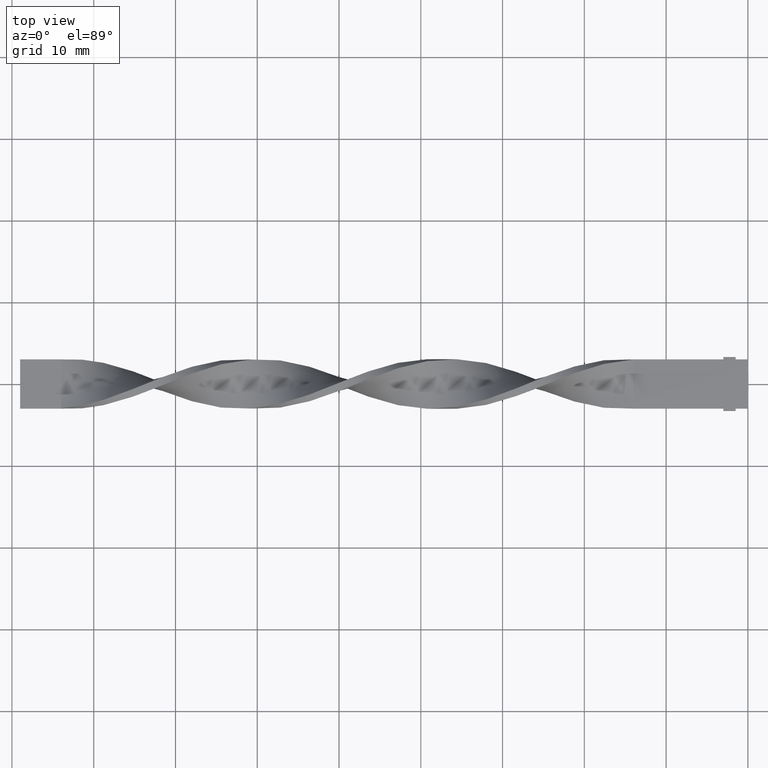
[diagram: clean part render]
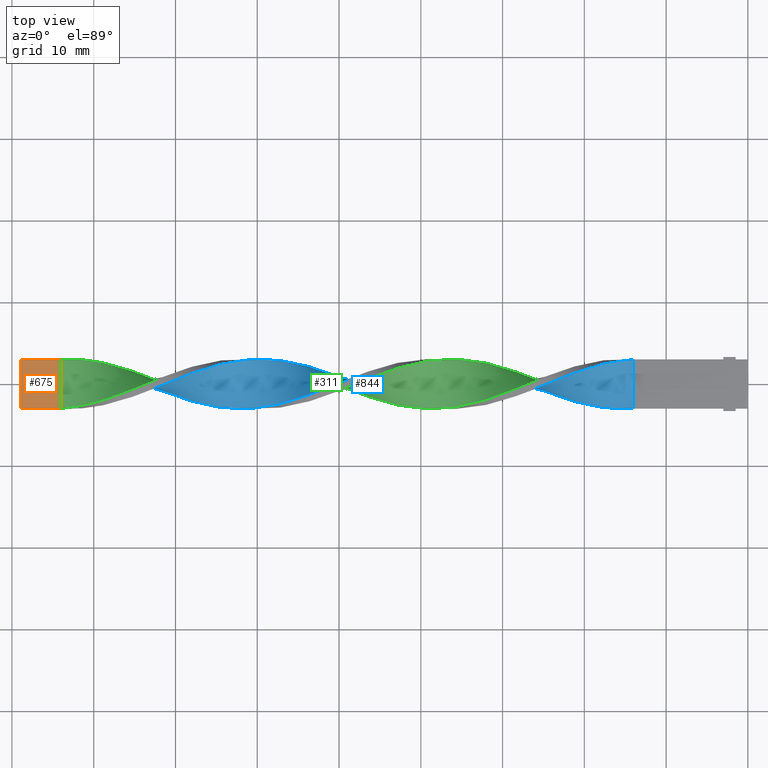
[diagram: same view with three faces highlighted in distinct colors, each labeled with its STEP entity id]
A machine part, top view with three faces highlighted in distinct colors.
Their STEP definitions:

[orange] entity #675 — the highlighted planar face has unit normal (0, -0, -1).
#9 = CARTESIAN_POINT ( 'NONE',  ( -89.00000000000001421, -2.999999999999999112, 0.5000000000000003331 ) ) ;
#49 = CARTESIAN_POINT ( 'NONE',  ( -89.00000000000001421, -2.999999999999999112, 0.5000000000000003331 ) ) ;
#110 = EDGE_CURVE ( 'NONE', #1030, #325, #514, .T. ) ;
#221 = AXIS2_PLACEMENT_3D ( 'NONE', #9, #372, #998 ) ;
#255 = PLANE ( 'NONE',  #221 ) ;
#304 = VERTEX_POINT ( 'NONE', #559 ) ;
#325 = VERTEX_POINT ( 'NONE', #767 ) ;
#372 = DIRECTION ( 'NONE',  ( 0.000000000000000000, -1.084202172485504681E-16, -1.000000000000000000 ) ) ;
#380 = CARTESIAN_POINT ( 'NONE',  ( -84.00000000000000000, -1.000000000000000000, 0.5000000000000001110 ) ) ;
#394 = ORIENTED_EDGE ( 'NONE', *, *, #110, .F. ) ;
#421 = B_SPLINE_CURVE_WITH_KNOTS ( 'NONE', 3,
 ( #631, #380, #609, #1125 ),
 .UNSPECIFIED., .F., .F.,
 ( 4, 4 ),
 ( 0.000000000000000000, 1.000000000000000000 ),
 .UNSPECIFIED. ) ;
#476 = ORIENTED_EDGE ( 'NONE', *, *, #685, .T. ) ;
#481 = LINE ( 'NONE', #977, #1554 ) ;
#514 = LINE ( 'NONE', #627, #949 ) ;
#559 = CARTESIAN_POINT ( 'NONE',  ( -84.00000000000000000, -2.999999999999999112, 0.5000000000000003331 ) ) ;
#609 = CARTESIAN_POINT ( 'NONE',  ( -84.00000000000000000, 1.000000000000000000, 0.4999999999999998890 ) ) ;
#627 = CARTESIAN_POINT ( 'NONE',  ( -89.00000000000001421, -2.999999999999999112, 0.5000000000000003331 ) ) ;
#631 = CARTESIAN_POINT ( 'NONE',  ( -84.00000000000000000, -2.999999999999999112, 0.5000000000000003331 ) ) ;
#649 = EDGE_LOOP ( 'NONE', ( #1379, #1527, #394, #476 ) ) ;
#661 = VERTEX_POINT ( 'NONE', #1494 ) ;
#675 = ADVANCED_FACE ( 'NONE', ( #1362 ), #255, .F. ) ;
#679 = LINE ( 'NONE', #1186, #1057 ) ;
#685 = EDGE_CURVE ( 'NONE', #1030, #304, #481, .T. ) ;
#732 = DIRECTION ( 'NONE',  ( 1.000000000000000000, -0.000000000000000000, -0.000000000000000000 ) ) ;
#742 = EDGE_CURVE ( 'NONE', #304, #661, #421, .T. ) ;
#767 = CARTESIAN_POINT ( 'NONE',  ( -89.00000000000001421, 2.999999999999999112, 0.4999999999999996669 ) ) ;
#949 = VECTOR ( 'NONE', #1156, 1000.000000000000000 ) ;
#977 = CARTESIAN_POINT ( 'NONE',  ( -89.00000000000001421, -2.999999999999999112, 0.5000000000000003331 ) ) ;
#998 = DIRECTION ( 'NONE',  ( 0.000000000000000000, 1.000000000000000000, -1.084202172485504681E-16 ) ) ;
#1030 = VERTEX_POINT ( 'NONE', #49 ) ;
#1057 = VECTOR ( 'NONE', #1071, 1000.000000000000000 ) ;
#1071 = DIRECTION ( 'NONE',  ( 1.000000000000000000, -0.000000000000000000, -0.000000000000000000 ) ) ;
#1125 = CARTESIAN_POINT ( 'NONE',  ( -84.00000000000000000, 2.999999999999999112, 0.4999999999999996669 ) ) ;
#1156 = DIRECTION ( 'NONE',  ( 0.000000000000000000, 1.000000000000000000, -1.084202172485504681E-16 ) ) ;
#1186 = CARTESIAN_POINT ( 'NONE',  ( -89.00000000000001421, 2.999999999999999112, 0.4999999999999996669 ) ) ;
#1271 = EDGE_CURVE ( 'NONE', #325, #661, #679, .T. ) ;
#1362 = FACE_OUTER_BOUND ( 'NONE', #649, .T. ) ;
#1379 = ORIENTED_EDGE ( 'NONE', *, *, #742, .T. ) ;
#1494 = CARTESIAN_POINT ( 'NONE',  ( -84.00000000000000000, 2.999999999999999112, 0.4999999999999996669 ) ) ;
#1527 = ORIENTED_EDGE ( 'NONE', *, *, #1271, .F. ) ;
#1554 = VECTOR ( 'NONE', #732, 1000.000000000000000 ) ;

[blue] entity #844 — the highlighted face is a freeform B-spline surface patch.
#1 = CARTESIAN_POINT ( 'NONE',  ( -82.20512820512820440, -3.032483284421934044, 0.2324760841496482100 ) ) ;
#11 = CARTESIAN_POINT ( 'NONE',  ( -84.00000000000000000, 1.000000000000000000, -0.5000000000000001110 ) ) ;
#20 = CARTESIAN_POINT ( 'NONE',  ( -66.05128205128204399, -2.577093573633700174, -1.615112600636833928 ) ) ;
#28 = CARTESIAN_POINT ( 'NONE',  ( -74.12820512820510999, 0.2341835458667254066, -3.054755894246597769 ) ) ;
#33 = CARTESIAN_POINT ( 'NONE',  ( -40.92307692307691980, 2.888729662981512902, 0.9514415033047001202 ) ) ;
#34 = CARTESIAN_POINT ( 'NONE',  ( -14.89743589743589602, 2.939289008388868751, 0.8642659496667816077 ) ) ;
#35 = CARTESIAN_POINT ( 'NONE',  ( -81.30769230769232081, 2.647046231879883305, -1.542569853484617504 ) ) ;
#43 = CARTESIAN_POINT ( 'NONE',  ( -36.43589743589743790, -3.060710991611129472, -0.1357340503332171711 ) ) ;
#44 = EDGE_CURVE ( 'NONE', #124, #853, #194, .T. ) ;
#51 = CARTESIAN_POINT ( 'NONE',  ( -15.79487179487179205, -3.032483284421934044, -0.2324760841496470720 ) ) ;
#52 = CARTESIAN_POINT ( 'NONE',  ( -23.87179487179487580, 0.2341835458667257397, 3.054755894246597769 ) ) ;
#58 = CARTESIAN_POINT ( 'NONE',  ( -24.76923076923076650, -0.1347443962830574271, 3.038394962421822942 ) ) ;
#59 = CARTESIAN_POINT ( 'NONE',  ( -65.15384615384614619, 2.200966749995605376, 2.131225204431203224 ) ) ;
#68 = CARTESIAN_POINT ( 'NONE',  ( -49.89743589743589069, 0.1347443962830601472, 3.038394962421822498 ) ) ;
#70 = CARTESIAN_POINT ( 'NONE',  ( -49.00000000000000000, 0.5036723384328409825, -3.022034030597047671 ) ) ;
#79 = CARTESIAN_POINT ( 'NONE',  ( -29.25641025641025905, -1.850388947743477175, 2.441810035334000428 ) ) ;
#80 = CARTESIAN_POINT ( 'NONE',  ( -75.92307692307691980, -1.850388947743477397, 2.441810035334000428 ) ) ;
#87 = CARTESIAN_POINT ( 'NONE',  ( -71.43589743589743080, -0.8579644778149966289, -2.917858282166499340 ) ) ;
#88 = CARTESIAN_POINT ( 'NONE',  ( -80.41025641025640880, -2.888729662981512902, 0.9514415033047007864 ) ) ;
#94 = CARTESIAN_POINT ( 'NONE',  ( -16.69230769230769695, 2.647046231879884193, 1.542569853484616615 ) ) ;
#102 = CARTESIAN_POINT ( 'NONE',  ( -48.10256410256410220, 0.8579644778149976281, 2.917858282166499340 ) ) ;
#106 = CARTESIAN_POINT ( 'NONE',  ( -74.12820512820512420, -1.212256617197150721, 2.813682533735952340 ) ) ;
#111 = CARTESIAN_POINT ( 'NONE',  ( -24.76923076923076650, -0.8579644778149966289, -2.917858282166499340 ) ) ;
#113 = CARTESIAN_POINT ( 'NONE',  ( -76.82051282051281760, -2.115686173140294724, 2.184919224315390540 ) ) ;
#118 = CARTESIAN_POINT ( 'NONE',  ( -22.97435897435897090, -1.531322782470314392, -2.627746284534975718 ) ) ;
#121 = CARTESIAN_POINT ( 'NONE',  ( -77.71794871794872961, -2.380983398537112272, 1.928028413296781984 ) ) ;
#124 = VERTEX_POINT ( 'NONE', #634 ) ;
#126 = CARTESIAN_POINT ( 'NONE',  ( -49.89743589743589069, 0.8579644778149938533, -2.917858282166499784 ) ) ;
#129 = CARTESIAN_POINT ( 'NONE',  ( -19.38461538461538325, -2.577093573633700174, -1.615112600636833928 ) ) ;
#133 = CARTESIAN_POINT ( 'NONE',  ( -46.30769230769230660, -0.5963065397849001137, -2.982351171577511284 ) ) ;
#134 =( BOUNDED_SURFACE ( )  B_SPLINE_SURFACE ( 1, 2, ( 
 ( #1522, #924, #51, #916, #535, #520, #289, #1012, #408, #891, #271, #544, #792, #1292, #1044, #657, #759, #425, #141, #1516, #1162, #1276, #1019, #638, #387, #1397, #766, #149, #155, #1153, #33, #527, #906, #1415, #280, #1284, #680, #592, #185, #1589, #68, #1088, #1442, #829, #469, #1330, #689, #451, #1080, #300, #946, #555, #966, #837, #574, #195, #1458, #1213, #444, #203, #701, #1207, #801, #435, #87, #1300, #810, #1564, #955, #1580, #1311, #939, #1469, #461, #1341, #336, #212, #707, #932 ),
 ( #583, #819, #1448, #94, #319, #1319, #177, #1053, #673, #1198, #1178, #329, #58, #1072, #1063, #1553, #309, #79, #1187, #1571, #565, #743, #1115, #1614, #1225, #1607, #486, #367, #1106, #247, #1349, #983, #1495, #1360, #599, #717, #133, #869, #607, #614, #126, #1597, #1381, #623, #495, #876, #219, #991, #477, #996, #237, #230, #1501, #352, #727, #974, #1488, #1505, #361, #862, #1373, #1232, #1367, #737, #500, #855, #1478, #106, #1241, #1095, #113, #121, #1247, #630, #241, #1123, #1, #371, #750 ) ),
 .UNSPECIFIED., .F., .F., .F. ) 
 B_SPLINE_SURFACE_WITH_KNOTS ( ( 2, 2 ),
 ( 3, 2, 2, 2, 2, 2, 2, 2, 2, 2, 2, 2, 2, 2, 2, 2, 2, 2, 2, 2, 2, 2, 2, 2, 2, 2, 2, 2, 2, 2, 2, 2, 2, 2, 2, 2, 2, 2, 2, 3 ),
 ( 0.000000000000000000, 1.000000000000000000 ),
 ( 0.000000000000000000, 0.01923076923076923184, 0.03846153846153846367, 0.05769230769230769551, 0.07692307692307692735, 0.09615384615384615918, 0.1153846153846153910, 0.1346153846153846090, 0.1538461538461538547, 0.1730769230769230727, 0.1923076923076923184, 0.2115384615384615363, 0.2307692307692307820, 0.2500000000000000000, 0.2692307692307692180, 0.2884615384615384359, 0.3076923076923077094, 0.3269230769230769273, 0.3461538461538461453, 0.3653846153846153633, 0.3846153846153846367, 0.4038461538461538547, 0.4230769230769230727, 0.4423076923076922906, 0.4615384615384615641, 0.4807692307692307820, 0.5000000000000000000, 0.5192307692307692735, 0.5384615384615384359, 0.5576923076923077094, 0.5769230769230768718, 0.5961538461538461453, 0.6153846153846154188, 0.6346153846153845812, 0.6538461538461538547, 0.6730769230769231282, 0.6923076923076922906, 0.7115384615384615641, 0.7307692307692307265, 0.7500000000000000000 ),
 .UNSPECIFIED. ) 
 GEOMETRIC_REPRESENTATION_ITEM ( )  RATIONAL_B_SPLINE_SURFACE ( (
 ( 1.000000000000000000, 0.9927088740980539727, 1.000000000000000000, 0.9927088740980539727, 1.000000000000000000, 0.9927088740980539727, 1.000000000000000000, 0.9927088740980539727, 1.000000000000000000, 0.9927088740980539727, 1.000000000000000000, 0.9927088740980539727, 1.000000000000000000, 0.9927088740980539727, 1.000000000000000000, 0.9927088740980539727, 1.000000000000000000, 0.9927088740980539727, 1.000000000000000000, 0.9927088740980539727, 1.000000000000000000, 0.9927088740980539727, 1.000000000000000000, 0.9927088740980539727, 1.000000000000000000, 0.9927088740980539727, 1.000000000000000000, 0.9927088740980539727, 1.000000000000000000, 0.9927088740980539727, 1.000000000000000000, 0.9927088740980539727, 1.000000000000000000, 0.9927088740980539727, 1.000000000000000000, 0.9927088740980539727, 1.000000000000000000, 0.9927088740980539727, 1.000000000000000000, 0.9927088740980539727, 1.000000000000000000, 0.9927088740980539727, 1.000000000000000000, 0.9927088740980539727, 1.000000000000000000, 0.9927088740980539727, 1.000000000000000000, 0.9927088740980539727, 1.000000000000000000, 0.9927088740980539727, 1.000000000000000000, 0.9927088740980539727, 1.000000000000000000, 0.9927088740980539727, 1.000000000000000000, 0.9927088740980539727, 1.000000000000000000, 0.9927088740980539727, 1.000000000000000000, 0.9927088740980539727, 1.000000000000000000, 0.9927088740980539727, 1.000000000000000000, 0.9927088740980539727, 1.000000000000000000, 0.9927088740980539727, 1.000000000000000000, 0.9927088740980539727, 1.000000000000000000, 0.9927088740980539727, 1.000000000000000000, 0.9927088740980539727, 1.000000000000000000, 0.9927088740980539727, 1.000000000000000000, 0.9927088740980539727, 1.000000000000000000, 0.9927088740980539727, 1.000000000000000000),
 ( 1.000000000000000000, 0.9927088740980539727, 1.000000000000000000, 0.9927088740980539727, 1.000000000000000000, 0.9927088740980539727, 1.000000000000000000, 0.9927088740980539727, 1.000000000000000000, 0.9927088740980539727, 1.000000000000000000, 0.9927088740980539727, 1.000000000000000000, 0.9927088740980539727, 1.000000000000000000, 0.9927088740980539727, 1.000000000000000000, 0.9927088740980539727, 1.000000000000000000, 0.9927088740980539727, 1.000000000000000000, 0.9927088740980539727, 1.000000000000000000, 0.9927088740980539727, 1.000000000000000000, 0.9927088740980539727, 1.000000000000000000, 0.9927088740980539727, 1.000000000000000000, 0.9927088740980539727, 1.000000000000000000, 0.9927088740980539727, 1.000000000000000000, 0.9927088740980539727, 1.000000000000000000, 0.9927088740980539727, 1.000000000000000000, 0.9927088740980539727, 1.000000000000000000, 0.9927088740980539727, 1.000000000000000000, 0.9927088740980539727, 1.000000000000000000, 0.9927088740980539727, 1.000000000000000000, 0.9927088740980539727, 1.000000000000000000, 0.9927088740980539727, 1.000000000000000000, 0.9927088740980539727, 1.000000000000000000, 0.9927088740980539727, 1.000000000000000000, 0.9927088740980539727, 1.000000000000000000, 0.9927088740980539727, 1.000000000000000000, 0.9927088740980539727, 1.000000000000000000, 0.9927088740980539727, 1.000000000000000000, 0.9927088740980539727, 1.000000000000000000, 0.9927088740980539727, 1.000000000000000000, 0.9927088740980539727, 1.000000000000000000, 0.9927088740980539727, 1.000000000000000000, 0.9927088740980539727, 1.000000000000000000, 0.9927088740980539727, 1.000000000000000000, 0.9927088740980539727, 1.000000000000000000, 0.9927088740980539727, 1.000000000000000000, 0.9927088740980539727, 1.000000000000000000) ) ) 
 REPRESENTATION_ITEM ( '' )  SURFACE ( )  );
#141 = CARTESIAN_POINT ( 'NONE',  ( -30.15384615384615330, 1.292702307246638371, -2.752983971046546685 ) ) ;
#144 = EDGE_CURVE ( 'NONE', #853, #175, #1359, .T. ) ;
#145 = CARTESIAN_POINT ( 'NONE',  ( -68.74358974358973740, -1.850388947743477619, -2.441810035334000428 ) ) ;
#149 = CARTESIAN_POINT ( 'NONE',  ( -38.23076923076922640, 3.060710991611129472, -0.1357340503332191695 ) ) ;
#151 = CARTESIAN_POINT ( 'NONE',  ( -58.87179487179486870, -2.793167620134375362, 1.203417901575701610 ) ) ;
#155 = CARTESIAN_POINT ( 'NONE',  ( -39.12820512820512420, 3.032483284421934044, 0.2324760841496460451 ) ) ;
#165 = CARTESIAN_POINT ( 'NONE',  ( -20.28205128205128460, 1.626975080790205030, 2.596021493184667683 ) ) ;
#172 = CARTESIAN_POINT ( 'NONE',  ( -52.58974358974359120, 1.850388947743476065, -2.441810035334000872 ) ) ;
#175 = VERTEX_POINT ( 'NONE', #1022 ) ;
#177 = CARTESIAN_POINT ( 'NONE',  ( -19.38461538461538325, 1.913970915392905425, 2.363623348807935454 ) ) ;
#178 = CARTESIAN_POINT ( 'NONE',  ( -58.87179487179486870, 3.032483284421933600, -0.2324760841496498753 ) ) ;
#185 = CARTESIAN_POINT ( 'NONE',  ( -48.10256410256410220, 0.8579644778149976281, 2.917858282166499340 ) ) ;
#187 = CARTESIAN_POINT ( 'NONE',  ( -47.20512820512820440, -0.2341835458667255176, -3.054755894246597769 ) ) ;
#194 =( BOUNDED_CURVE ( )  B_SPLINE_CURVE ( 2, ( #620, #1085, #1237, #1346, #747, #1617, #129, #497, #1365, #1491, #118, #370, #111, #1498, #365, #492, #1586, #1218, #1371, #467, #474, #993, #1119, #244, #872, #1376, #962, #359, #1474, #226, #341, #841, #860, #603, #216, #1100, #234, #711, #102, #597, #734, #1111, #1093, #970, #1483, #349, #851, #723, #1410, #509, #151, #902, #274, #391, #1508, #1000, #762, #523, #20, #880, #1127, #145, #258, #1006, #1384, #375, #909, #28, #1393, #1401, #778, #753, #530, #1279, #771, #35, #503, #265, #1258 ),
 .UNSPECIFIED., .F., .T. ) 
 B_SPLINE_CURVE_WITH_KNOTS ( ( 3, 2, 2, 2, 2, 2, 2, 2, 2, 2, 2, 2, 2, 2, 2, 2, 2, 2, 2, 2, 2, 2, 2, 2, 2, 2, 2, 2, 2, 2, 2, 2, 2, 2, 2, 2, 2, 2, 2, 3 ),
 ( 0.000000000000000000, 0.01923076923076923184, 0.03846153846153846367, 0.05769230769230768857, 0.07692307692307692735, 0.09615384615384615918, 0.1153846153846153771, 0.1346153846153846090, 0.1538461538461538547, 0.1730769230769230449, 0.1923076923076923184, 0.2115384615384615363, 0.2307692307692307543, 0.2500000000000000000, 0.2692307692307692180, 0.2884615384615384359, 0.3076923076923077094, 0.3269230769230769273, 0.3461538461538460898, 0.3653846153846153633, 0.3846153846153846367, 0.4038461538461539102, 0.4230769230769230727, 0.4423076923076922906, 0.4615384615384615086, 0.4807692307692307820, 0.5000000000000000000, 0.5192307692307692735, 0.5384615384615384359, 0.5576923076923077094, 0.5769230769230768718, 0.5961538461538461453, 0.6153846153846154188, 0.6346153846153845812, 0.6538461538461538547, 0.6730769230769230171, 0.6923076923076921796, 0.7115384615384615641, 0.7307692307692307265, 0.7500000000000000000 ),
 .UNSPECIFIED. ) 
 CURVE ( )  GEOMETRIC_REPRESENTATION_ITEM ( )  RATIONAL_B_SPLINE_CURVE ( ( 1.000000000000000000, 0.9927088740980539727, 1.000000000000000000, 0.9927088740980539727, 1.000000000000000000, 0.9927088740980539727, 1.000000000000000000, 0.9927088740980539727, 1.000000000000000000, 0.9927088740980539727, 1.000000000000000000, 0.9927088740980539727, 1.000000000000000000, 0.9927088740980539727, 1.000000000000000000, 0.9927088740980539727, 1.000000000000000000, 0.9927088740980539727, 1.000000000000000000, 0.9927088740980539727, 1.000000000000000000, 0.9927088740980539727, 1.000000000000000000, 0.9927088740980539727, 1.000000000000000000, 0.9927088740980539727, 1.000000000000000000, 0.9927088740980539727, 1.000000000000000000, 0.9927088740980539727, 1.000000000000000000, 0.9927088740980539727, 1.000000000000000000, 0.9927088740980539727, 1.000000000000000000, 0.9927088740980539727, 1.000000000000000000, 0.9927088740980539727, 1.000000000000000000, 0.9927088740980539727, 1.000000000000000000, 0.9927088740980539727, 1.000000000000000000, 0.9927088740980539727, 1.000000000000000000, 0.9927088740980539727, 1.000000000000000000, 0.9927088740980539727, 1.000000000000000000, 0.9927088740980539727, 1.000000000000000000, 0.9927088740980539727, 1.000000000000000000, 0.9927088740980539727, 1.000000000000000000, 0.9927088740980539727, 1.000000000000000000, 0.9927088740980539727, 1.000000000000000000, 0.9927088740980539727, 1.000000000000000000, 0.9927088740980539727, 1.000000000000000000, 0.9927088740980539727, 1.000000000000000000, 0.9927088740980539727, 1.000000000000000000, 0.9927088740980539727, 1.000000000000000000, 0.9927088740980539727, 1.000000000000000000, 0.9927088740980539727, 1.000000000000000000, 0.9927088740980539727, 1.000000000000000000, 0.9927088740980539727, 1.000000000000000000, 0.9927088740980539727, 1.000000000000000000 ) ) 
 REPRESENTATION_ITEM ( '' )  );
#195 = CARTESIAN_POINT ( 'NONE',  ( -63.35897435897435770, -3.004255577232739061, -0.6006862186325124808 ) ) ;
#197 = CARTESIAN_POINT ( 'NONE',  ( -75.02564102564102200, -1.531322782470313726, 2.627746284534976162 ) ) ;
#200 = EDGE_LOOP ( 'NONE', ( #405, #570, #1465, #1455 ) ) ;
#203 = CARTESIAN_POINT ( 'NONE',  ( -66.94871794871794179, -2.380983398537113160, -1.928028413296780874 ) ) ;
#212 = CARTESIAN_POINT ( 'NONE',  ( -82.20512820512820440, 2.793167620134375806, -1.203417901575700055 ) ) ;
#216 = CARTESIAN_POINT ( 'NONE',  ( -44.51282051282051100, 2.115686173140295168, 2.184919224315390540 ) ) ;
#219 = CARTESIAN_POINT ( 'NONE',  ( -55.28205128205128460, 2.577093573633699286, -1.615112600636835483 ) ) ;
#226 = CARTESIAN_POINT ( 'NONE',  ( -40.02564102564102200, 3.004255577232739505, 0.6006862186325113706 ) ) ;
#230 = CARTESIAN_POINT ( 'NONE',  ( -59.76923076923077360, 3.060710991611129916, 0.1357340503332168102 ) ) ;
#234 = CARTESIAN_POINT ( 'NONE',  ( -46.30769230769230660, 1.531322782470314836, 2.627746284534975718 ) ) ;
#237 = CARTESIAN_POINT ( 'NONE',  ( -58.87179487179486870, 3.032483284421933600, -0.2324760841496498753 ) ) ;
#241 = CARTESIAN_POINT ( 'NONE',  ( -80.41025641025640880, -2.888729662981512902, 0.9514415033047007864 ) ) ;
#242 = CARTESIAN_POINT ( 'NONE',  ( -19.38461538461538325, 1.913970915392905425, 2.363623348807935454 ) ) ;
#244 = CARTESIAN_POINT ( 'NONE',  ( -34.64102564102564230, 2.647046231879883305, -1.542569853484617504 ) ) ;
#247 = CARTESIAN_POINT ( 'NONE',  ( -40.02564102564102200, -2.647046231879884637, -1.542569853484615505 ) ) ;
#252 = LINE ( 'NONE', #1283, #1135 ) ;
#258 = CARTESIAN_POINT ( 'NONE',  ( -69.64102564102564941, -1.531322782470314392, -2.627746284534975718 ) ) ;
#265 = CARTESIAN_POINT ( 'NONE',  ( -83.10256410256410220, 2.939289008388868751, -0.8642659496667828289 ) ) ;
#271 = CARTESIAN_POINT ( 'NONE',  ( -22.97435897435897090, -1.531322782470314392, -2.627746284534975718 ) ) ;
#274 = CARTESIAN_POINT ( 'NONE',  ( -60.66666666666666430, -2.999999999999999112, 0.5000000000000000000 ) ) ;
#280 = CARTESIAN_POINT ( 'NONE',  ( -44.51282051282051100, 2.115686173140295168, 2.184919224315390540 ) ) ;
#281 = CARTESIAN_POINT ( 'NONE',  ( -25.66666666666666785, -0.5036723384328412045, 3.022034030597047671 ) ) ;
#289 = CARTESIAN_POINT ( 'NONE',  ( -19.38461538461538325, -2.577093573633700174, -1.615112600636833928 ) ) ;
#290 = CARTESIAN_POINT ( 'NONE',  ( -28.35897435897435770, -1.531322782470313726, 2.627746284534976162 ) ) ;
#300 = CARTESIAN_POINT ( 'NONE',  ( -57.97435897435897090, -2.647046231879883305, 1.542569853484618170 ) ) ;
#301 = CARTESIAN_POINT ( 'NONE',  ( -50.79487179487178850, 1.212256617197149611, -2.813682533735953228 ) ) ;
#309 = CARTESIAN_POINT ( 'NONE',  ( -28.35897435897435770, -1.531322782470313726, 2.627746284534976162 ) ) ;
#310 = CARTESIAN_POINT ( 'NONE',  ( -41.82051282051281760, -2.200966749995605820, -2.131225204431203224 ) ) ;
#319 = CARTESIAN_POINT ( 'NONE',  ( -17.58974358974358765, 2.424006490937744562, 1.836897528957910142 ) ) ;
#320 = CARTESIAN_POINT ( 'NONE',  ( -45.41025641025640880, -0.9584295337030747097, -2.909946448908424355 ) ) ;
#329 = CARTESIAN_POINT ( 'NONE',  ( -23.87179487179487580, 0.2341835458667257397, 3.054755894246597769 ) ) ;
#336 = CARTESIAN_POINT ( 'NONE',  ( -81.30769230769233502, 2.647046231879883305, -1.542569853484617726 ) ) ;
#341 = CARTESIAN_POINT ( 'NONE',  ( -40.92307692307691980, 2.888729662981512902, 0.9514415033047001202 ) ) ;
#349 = CARTESIAN_POINT ( 'NONE',  ( -54.38461538461538680, -1.626975080790202366, 2.596021493184669016 ) ) ;
#352 = CARTESIAN_POINT ( 'NONE',  ( -61.56410256410256920, 2.939289008388868751, 0.8642659496667817187 ) ) ;
#359 = CARTESIAN_POINT ( 'NONE',  ( -38.23076923076922640, 3.060710991611129472, -0.1357340503332191972 ) ) ;
#361 = CARTESIAN_POINT ( 'NONE',  ( -66.05128205128204399, 1.913970915392905425, 2.363623348807935454 ) ) ;
#365 = CARTESIAN_POINT ( 'NONE',  ( -26.56410256410256210, -0.1347443962830584541, -3.038394962421822498 ) ) ;
#367 = CARTESIAN_POINT ( 'NONE',  ( -38.23076923076922640, -2.939289008388868751, -0.8642659496667810526 ) ) ;
#370 = CARTESIAN_POINT ( 'NONE',  ( -23.87179487179487580, -1.212256617197150943, -2.813682533735952340 ) ) ;
#371 = CARTESIAN_POINT ( 'NONE',  ( -83.10256410256410220, -3.060710991611129472, -0.1357340503332171988 ) ) ;
#375 = CARTESIAN_POINT ( 'NONE',  ( -72.33333333333332860, -0.5036723384328416486, -3.022034030597047671 ) ) ;
#382 = CARTESIAN_POINT ( 'NONE',  ( -84.00000000000000000, -2.999999999999999112, -0.4999999999999996669 ) ) ;
#384 = EDGE_CURVE ( 'NONE', #414, #175, #1246, .T. ) ;
#387 = CARTESIAN_POINT ( 'NONE',  ( -35.53846153846153300, 2.793167620134375806, -1.203417901575700055 ) ) ;
#391 = CARTESIAN_POINT ( 'NONE',  ( -61.56410256410256920, -3.060710991611129472, 0.1357340503332185033 ) ) ;
#405 = ORIENTED_EDGE ( 'NONE', *, *, #963, .F. ) ;
#408 = CARTESIAN_POINT ( 'NONE',  ( -21.17948717948717885, -2.115686173140295168, -2.184919224315390540 ) ) ;
#409 = CARTESIAN_POINT ( 'NONE',  ( -57.07692307692307310, 2.888729662981512458, -0.9514415033047024517 ) ) ;
#414 = VERTEX_POINT ( 'NONE', #600 ) ;
#418 = CARTESIAN_POINT ( 'NONE',  ( -57.97435897435897090, 3.004255577232739061, -0.6006862186325138131 ) ) ;
#425 = CARTESIAN_POINT ( 'NONE',  ( -29.25641025641025905, 0.9584295337030727113, -2.909946448908424799 ) ) ;
#426 = CARTESIAN_POINT ( 'NONE',  ( -27.46153846153846345, -1.212256617197150721, 2.813682533735952340 ) ) ;
#435 = CARTESIAN_POINT ( 'NONE',  ( -70.53846153846153300, -1.212256617197150943, -2.813682533735952340 ) ) ;
#436 = CARTESIAN_POINT ( 'NONE',  ( -67.84615384615385381, 1.292702307246639037, 2.752983971046546685 ) ) ;
#444 = CARTESIAN_POINT ( 'NONE',  ( -66.05128205128204399, -2.577093573633700174, -1.615112600636833928 ) ) ;
#445 = CARTESIAN_POINT ( 'NONE',  ( -68.74358974358973740, 0.9584295337030730444, 2.909946448908425243 ) ) ;
#451 = CARTESIAN_POINT ( 'NONE',  ( -56.17948717948717530, -2.200966749995605376, 2.131225204431204112 ) ) ;
#461 = CARTESIAN_POINT ( 'NONE',  ( -79.51282051282051100, 2.200966749995605376, -2.131225204431203668 ) ) ;
#467 = CARTESIAN_POINT ( 'NONE',  ( -31.05128205128205465, 1.626975080790203920, -2.596021493184668572 ) ) ;
#469 = CARTESIAN_POINT ( 'NONE',  ( -53.48717948717948900, -1.292702307246637927, 2.752983971046546685 ) ) ;
#474 = CARTESIAN_POINT ( 'NONE',  ( -31.94871794871794535, 1.913970915392904315, -2.363623348807935898 ) ) ;
#477 = CARTESIAN_POINT ( 'NONE',  ( -57.07692307692307310, 2.888729662981512458, -0.9514415033047024517 ) ) ;
#486 = CARTESIAN_POINT ( 'NONE',  ( -37.33333333333332860, -2.999999999999999112, -0.4999999999999996669 ) ) ;
#492 = CARTESIAN_POINT ( 'NONE',  ( -27.46153846153846345, 0.2341835458667254066, -3.054755894246597769 ) ) ;
#495 = CARTESIAN_POINT ( 'NONE',  ( -53.48717948717948900, 2.115686173140294724, -2.184919224315391428 ) ) ;
#497 = CARTESIAN_POINT ( 'NONE',  ( -20.28205128205128460, -2.380983398537113160, -1.928028413296780874 ) ) ;
#500 = CARTESIAN_POINT ( 'NONE',  ( -71.43589743589743080, -0.1347443962830574271, 3.038394962421822942 ) ) ;
#503 = CARTESIAN_POINT ( 'NONE',  ( -82.20512820512820440, 2.793167620134375806, -1.203417901575700055 ) ) ;
#509 = CARTESIAN_POINT ( 'NONE',  ( -57.97435897435897090, -2.647046231879883305, 1.542569853484617948 ) ) ;
#520 = CARTESIAN_POINT ( 'NONE',  ( -18.48717948717948545, -2.773203748730287632, -1.302196787976887649 ) ) ;
#523 = CARTESIAN_POINT ( 'NONE',  ( -65.15384615384614619, -2.773203748730287632, -1.302196787976887871 ) ) ;
#527 = CARTESIAN_POINT ( 'NONE',  ( -41.82051282051281760, 2.773203748730288076, 1.302196787976887205 ) ) ;
#528 = CARTESIAN_POINT ( 'NONE',  ( -15.79487179487179205, 2.793167620134376694, 1.203417901575699167 ) ) ;
#530 = CARTESIAN_POINT ( 'NONE',  ( -78.61538461538461320, 1.913970915392904315, -2.363623348807935898 ) ) ;
#535 = CARTESIAN_POINT ( 'NONE',  ( -17.58974358974358765, -2.888729662981512902, -0.9514415033047003423 ) ) ;
#536 = CARTESIAN_POINT ( 'NONE',  ( -38.23076923076922640, -2.939289008388868751, -0.8642659496667810526 ) ) ;
#544 = CARTESIAN_POINT ( 'NONE',  ( -23.87179487179487580, -1.212256617197150943, -2.813682533735952340 ) ) ;
#545 = CARTESIAN_POINT ( 'NONE',  ( -21.17948717948717885, 1.292702307246639037, 2.752983971046546685 ) ) ;
#555 = CARTESIAN_POINT ( 'NONE',  ( -59.76923076923077360, -2.939289008388868307, 0.8642659496667831620 ) ) ;
#556 = CARTESIAN_POINT ( 'NONE',  ( -51.69230769230769340, 1.531322782470313726, -2.627746284534976162 ) ) ;
#565 = CARTESIAN_POINT ( 'NONE',  ( -31.94871794871794535, -2.577093573633699730, 1.615112600636835261 ) ) ;
#566 = CARTESIAN_POINT ( 'NONE',  ( -62.46153846153845990, 2.793167620134376694, 1.203417901575699167 ) ) ;
#570 = ORIENTED_EDGE ( 'NONE', *, *, #384, .T. ) ;
#574 = CARTESIAN_POINT ( 'NONE',  ( -62.46153846153845990, -3.032483284421934044, -0.2324760841496470720 ) ) ;
#575 = CARTESIAN_POINT ( 'NONE',  ( -35.53846153846153300, -3.032483284421934044, 0.2324760841496482100 ) ) ;
#583 = CARTESIAN_POINT ( 'NONE',  ( -13.99999999999999822, 2.999999999999999112, 0.5000000000000000000 ) ) ;
#592 = CARTESIAN_POINT ( 'NONE',  ( -47.20512820512820440, 1.212256617197150721, 2.813682533735952340 ) ) ;
#597 = CARTESIAN_POINT ( 'NONE',  ( -49.00000000000000000, 0.5036723384328419817, 3.022034030597047671 ) ) ;
#599 = CARTESIAN_POINT ( 'NONE',  ( -44.51282051282051100, -1.292702307246639037, -2.752983971046546685 ) ) ;
#600 = CARTESIAN_POINT ( 'NONE',  ( -13.99999999999999822, 2.999999999999999112, 0.5000000000000000000 ) ) ;
#603 = CARTESIAN_POINT ( 'NONE',  ( -43.61538461538461320, 2.380983398537114049, 1.928028413296780430 ) ) ;
#607 = CARTESIAN_POINT ( 'NONE',  ( -48.10256410256410220, 0.1347443962830564002, -3.038394962421822942 ) ) ;
#608 = CARTESIAN_POINT ( 'NONE',  ( -79.51282051282051100, -2.773203748730287632, 1.302196787976888093 ) ) ;
#614 = CARTESIAN_POINT ( 'NONE',  ( -49.00000000000000711, 0.5036723384328408715, -3.022034030597047671 ) ) ;
#620 = CARTESIAN_POINT ( 'NONE',  ( -13.99999999999999822, -2.999999999999999112, 0.5000000000000000000 ) ) ;
#623 = CARTESIAN_POINT ( 'NONE',  ( -52.58974358974358410, 1.850388947743476065, -2.441810035334000872 ) ) ;
#630 = CARTESIAN_POINT ( 'NONE',  ( -79.51282051282051100, -2.773203748730287632, 1.302196787976887871 ) ) ;
#634 = CARTESIAN_POINT ( 'NONE',  ( -13.99999999999999822, -2.999999999999999112, 0.5000000000000000000 ) ) ;
#638 = CARTESIAN_POINT ( 'NONE',  ( -34.64102564102564230, 2.647046231879883305, -1.542569853484617726 ) ) ;
#657 = CARTESIAN_POINT ( 'NONE',  ( -27.46153846153846345, 0.2341835458667254066, -3.054755894246597769 ) ) ;
#658 = CARTESIAN_POINT ( 'NONE',  ( -33.74358974358974450, -2.888729662981512902, 0.9514415033047007864 ) ) ;
#665 = CARTESIAN_POINT ( 'NONE',  ( -61.56410256410256920, 2.939289008388868751, 0.8642659496667816077 ) ) ;
#673 = CARTESIAN_POINT ( 'NONE',  ( -21.17948717948717885, 1.292702307246639037, 2.752983971046546685 ) ) ;
#674 = CARTESIAN_POINT ( 'NONE',  ( -37.33333333333332860, -2.999999999999999112, -0.4999999999999996669 ) ) ;
#680 = CARTESIAN_POINT ( 'NONE',  ( -46.30769230769230660, 1.531322782470314836, 2.627746284534975718 ) ) ;
#681 = CARTESIAN_POINT ( 'NONE',  ( -40.92307692307691980, -2.424006490937744562, -1.836897528957909920 ) ) ;
#689 = CARTESIAN_POINT ( 'NONE',  ( -55.28205128205128460, -1.913970915392903871, 2.363623348807935898 ) ) ;
#690 = CARTESIAN_POINT ( 'NONE',  ( -31.05128205128205465, -2.380983398537112272, 1.928028413296781984 ) ) ;
#701 = CARTESIAN_POINT ( 'NONE',  ( -67.84615384615385381, -2.115686173140295168, -2.184919224315390540 ) ) ;
#707 = CARTESIAN_POINT ( 'NONE',  ( -83.10256410256410220, 2.939289008388868751, -0.8642659496667827179 ) ) ;
#711 = CARTESIAN_POINT ( 'NONE',  ( -47.20512820512820440, 1.212256617197150721, 2.813682533735952340 ) ) ;
#717 = CARTESIAN_POINT ( 'NONE',  ( -45.41025641025640880, -0.9584295337030748207, -2.909946448908423910 ) ) ;
#718 = CARTESIAN_POINT ( 'NONE',  ( -81.30769230769232081, -3.004255577232739061, 0.6006862186325134800 ) ) ;
#723 = CARTESIAN_POINT ( 'NONE',  ( -56.17948717948717530, -2.200966749995605376, 2.131225204431204112 ) ) ;
#727 = CARTESIAN_POINT ( 'NONE',  ( -62.46153846153845990, 2.793167620134376694, 1.203417901575699167 ) ) ;
#734 = CARTESIAN_POINT ( 'NONE',  ( -49.89743589743589069, 0.1347443962830601472, 3.038394962421822498 ) ) ;
#737 = CARTESIAN_POINT ( 'NONE',  ( -70.53846153846153300, 0.2341835458667257397, 3.054755894246597769 ) ) ;
#743 = CARTESIAN_POINT ( 'NONE',  ( -32.84615384615384670, -2.773203748730287632, 1.302196787976887871 ) ) ;
#747 = CARTESIAN_POINT ( 'NONE',  ( -17.58974358974358765, -2.888729662981512902, -0.9514415033047003423 ) ) ;
#750 = CARTESIAN_POINT ( 'NONE',  ( -84.00000000000000000, -2.999999999999999112, -0.4999999999999996669 ) ) ;
#753 = CARTESIAN_POINT ( 'NONE',  ( -77.71794871794874382, 1.626975080790203920, -2.596021493184668572 ) ) ;
#759 = CARTESIAN_POINT ( 'NONE',  ( -28.35897435897435770, 0.5963065397848987814, -2.982351171577511728 ) ) ;
#762 = CARTESIAN_POINT ( 'NONE',  ( -64.25641025641024839, -2.888729662981512902, -0.9514415033047003423 ) ) ;
#766 = CARTESIAN_POINT ( 'NONE',  ( -37.33333333333332860, 2.999999999999999112, -0.5000000000000003331 ) ) ;
#771 = CARTESIAN_POINT ( 'NONE',  ( -80.41025641025640880, 2.424006490937744562, -1.836897528957910586 ) ) ;
#778 = CARTESIAN_POINT ( 'NONE',  ( -76.82051282051281760, 1.292702307246638371, -2.752983971046546685 ) ) ;
#783 = CARTESIAN_POINT ( 'NONE',  ( -49.89743589743589069, 0.8579644778149938533, -2.917858282166499784 ) ) ;
#792 = CARTESIAN_POINT ( 'NONE',  ( -24.76923076923076650, -0.8579644778149966289, -2.917858282166499340 ) ) ;
#793 = CARTESIAN_POINT ( 'NONE',  ( -60.66666666666666430, 2.999999999999999112, 0.5000000000000000000 ) ) ;
#801 = CARTESIAN_POINT ( 'NONE',  ( -69.64102564102564941, -1.531322782470314392, -2.627746284534975718 ) ) ;
#802 = CARTESIAN_POINT ( 'NONE',  ( -53.48717948717948900, 2.115686173140294724, -2.184919224315391428 ) ) ;
#810 = CARTESIAN_POINT ( 'NONE',  ( -73.23076923076924061, -0.1347443962830584541, -3.038394962421822498 ) ) ;
#811 = CARTESIAN_POINT ( 'NONE',  ( -70.53846153846153300, 0.2341835458667257397, 3.054755894246597769 ) ) ;
#819 = CARTESIAN_POINT ( 'NONE',  ( -14.89743589743589602, 2.939289008388868751, 0.8642659496667817187 ) ) ;
#820 = CARTESIAN_POINT ( 'NONE',  ( -24.76923076923076650, -0.1347443962830574271, 3.038394962421822942 ) ) ;
#829 = CARTESIAN_POINT ( 'NONE',  ( -52.58974358974358410, -0.9584295337030710460, 2.909946448908425243 ) ) ;
#837 = CARTESIAN_POINT ( 'NONE',  ( -61.56410256410256920, -3.060710991611129472, 0.1357340503332185311 ) ) ;
#841 = CARTESIAN_POINT ( 'NONE',  ( -41.82051282051281760, 2.773203748730288076, 1.302196787976887205 ) ) ;
#844 = ADVANCED_FACE ( 'NONE', ( #1033 ), #134, .T. ) ;
#851 = CARTESIAN_POINT ( 'NONE',  ( -55.28205128205128460, -1.913970915392903871, 2.363623348807935898 ) ) ;
#853 = VERTEX_POINT ( 'NONE', #1254 ) ;
#855 = CARTESIAN_POINT ( 'NONE',  ( -72.33333333333332860, -0.5036723384328412045, 3.022034030597047671 ) ) ;
#860 = CARTESIAN_POINT ( 'NONE',  ( -42.71794871794872250, 2.577093573633700618, 1.615112600636833928 ) ) ;
#862 = CARTESIAN_POINT ( 'NONE',  ( -66.94871794871794179, 1.626975080790204808, 2.596021493184667683 ) ) ;
#869 = CARTESIAN_POINT ( 'NONE',  ( -47.20512820512820440, -0.2341835458667255176, -3.054755894246597769 ) ) ;
#872 = CARTESIAN_POINT ( 'NONE',  ( -35.53846153846153300, 2.793167620134375806, -1.203417901575700055 ) ) ;
#876 = CARTESIAN_POINT ( 'NONE',  ( -54.38461538461538680, 2.380983398537111384, -1.928028413296783095 ) ) ;
#880 = CARTESIAN_POINT ( 'NONE',  ( -66.94871794871795601, -2.380983398537113160, -1.928028413296780874 ) ) ;
#891 = CARTESIAN_POINT ( 'NONE',  ( -22.07692307692308376, -1.850388947743477397, -2.441810035334000428 ) ) ;
#902 = CARTESIAN_POINT ( 'NONE',  ( -59.76923076923076650, -2.939289008388868307, 0.8642659496667832730 ) ) ;
#906 = CARTESIAN_POINT ( 'NONE',  ( -42.71794871794872250, 2.577093573633700618, 1.615112600636833928 ) ) ;
#907 = CARTESIAN_POINT ( 'NONE',  ( -42.71794871794872250, -1.913970915392905869, -2.363623348807935454 ) ) ;
#909 = CARTESIAN_POINT ( 'NONE',  ( -73.23076923076924061, -0.1347443962830584541, -3.038394962421822498 ) ) ;
#916 = CARTESIAN_POINT ( 'NONE',  ( -16.69230769230769695, -3.004255577232739061, -0.6006862186325124808 ) ) ;
#917 = CARTESIAN_POINT ( 'NONE',  ( -59.76923076923076650, 3.060710991611129916, 0.1357340503332168102 ) ) ;
#924 = CARTESIAN_POINT ( 'NONE',  ( -14.89743589743589602, -3.060710991611129472, 0.1357340503332185311 ) ) ;
#925 = CARTESIAN_POINT ( 'NONE',  ( -43.61538461538461320, -1.626975080790205919, -2.596021493184667239 ) ) ;
#932 = CARTESIAN_POINT ( 'NONE',  ( -84.00000000000000000, 2.999999999999999112, -0.5000000000000003331 ) ) ;
#933 = CARTESIAN_POINT ( 'NONE',  ( -22.97435897435897090, 0.5963065397848997806, 2.982351171577511284 ) ) ;
#939 = CARTESIAN_POINT ( 'NONE',  ( -77.71794871794872961, 1.626975080790203920, -2.596021493184668572 ) ) ;
#940 = CARTESIAN_POINT ( 'NONE',  ( -69.64102564102564941, 0.5963065397848997806, 2.982351171577511284 ) ) ;
#946 = CARTESIAN_POINT ( 'NONE',  ( -58.87179487179486870, -2.793167620134375362, 1.203417901575701610 ) ) ;
#955 = CARTESIAN_POINT ( 'NONE',  ( -75.02564102564102200, 0.5963065397848987814, -2.982351171577511728 ) ) ;
#962 = CARTESIAN_POINT ( 'NONE',  ( -37.33333333333332860, 2.999999999999999112, -0.5000000000000003331 ) ) ;
#963 = EDGE_CURVE ( 'NONE', #414, #124, #252, .T. ) ;
#966 = CARTESIAN_POINT ( 'NONE',  ( -60.66666666666666430, -2.999999999999999112, 0.5000000000000000000 ) ) ;
#970 = CARTESIAN_POINT ( 'NONE',  ( -52.58974358974359120, -0.9584295337030711570, 2.909946448908425687 ) ) ;
#974 = CARTESIAN_POINT ( 'NONE',  ( -63.35897435897435770, 2.647046231879884193, 1.542569853484616615 ) ) ;
#983 = CARTESIAN_POINT ( 'NONE',  ( -41.82051282051281760, -2.200966749995605820, -2.131225204431203224 ) ) ;
#991 = CARTESIAN_POINT ( 'NONE',  ( -56.17948717948717530, 2.773203748730287632, -1.302196787976888315 ) ) ;
#993 = CARTESIAN_POINT ( 'NONE',  ( -32.84615384615384670, 2.200966749995605376, -2.131225204431203668 ) ) ;
#996 = CARTESIAN_POINT ( 'NONE',  ( -57.97435897435897090, 3.004255577232739061, -0.6006862186325138131 ) ) ;
#1000 = CARTESIAN_POINT ( 'NONE',  ( -63.35897435897436480, -3.004255577232739061, -0.6006862186325124808 ) ) ;
#1006 = CARTESIAN_POINT ( 'NONE',  ( -70.53846153846153300, -1.212256617197150943, -2.813682533735952340 ) ) ;
#1012 = CARTESIAN_POINT ( 'NONE',  ( -20.28205128205128460, -2.380983398537113160, -1.928028413296780874 ) ) ;
#1015 = CARTESIAN_POINT ( 'NONE',  ( -84.00000000000000000, -1.000000000000000000, -0.4999999999999998890 ) ) ;
#1019 = CARTESIAN_POINT ( 'NONE',  ( -33.74358974358974450, 2.424006490937744562, -1.836897528957910586 ) ) ;
#1022 = CARTESIAN_POINT ( 'NONE',  ( -84.00000000000000000, -2.999999999999999112, -0.4999999999999996669 ) ) ;
#1027 = CARTESIAN_POINT ( 'NONE',  ( -16.69230769230769340, 2.647046231879884193, 1.542569853484616615 ) ) ;
#1033 = FACE_OUTER_BOUND ( 'NONE', #200, .T. ) ;
#1034 = CARTESIAN_POINT ( 'NONE',  ( -40.02564102564102200, -2.647046231879884637, -1.542569853484615505 ) ) ;
#1044 = CARTESIAN_POINT ( 'NONE',  ( -26.56410256410256210, -0.1347443962830584541, -3.038394962421822498 ) ) ;
#1045 = CARTESIAN_POINT ( 'NONE',  ( -22.07692307692308020, 0.9584295337030730444, 2.909946448908425243 ) ) ;
#1053 = CARTESIAN_POINT ( 'NONE',  ( -20.28205128205128460, 1.626975080790204808, 2.596021493184667683 ) ) ;
#1054 = CARTESIAN_POINT ( 'NONE',  ( -66.05128205128204399, 1.913970915392905425, 2.363623348807935454 ) ) ;
#1063 = CARTESIAN_POINT ( 'NONE',  ( -26.56410256410256210, -0.8579644778149956297, 2.917858282166499784 ) ) ;
#1065 = CARTESIAN_POINT ( 'NONE',  ( -55.28205128205128460, 2.577093573633699286, -1.615112600636835483 ) ) ;
#1072 = CARTESIAN_POINT ( 'NONE',  ( -25.66666666666666785, -0.5036723384328412045, 3.022034030597047671 ) ) ;
#1073 = CARTESIAN_POINT ( 'NONE',  ( -44.51282051282051100, -1.292702307246639037, -2.752983971046546685 ) ) ;
#1080 = CARTESIAN_POINT ( 'NONE',  ( -57.07692307692307310, -2.424006490937743230, 1.836897528957911918 ) ) ;
#1085 = CARTESIAN_POINT ( 'NONE',  ( -14.89743589743589602, -3.060710991611129472, 0.1357340503332185033 ) ) ;
#1088 = CARTESIAN_POINT ( 'NONE',  ( -50.79487179487178850, -0.2341835458667242409, 3.054755894246597769 ) ) ;
#1089 = CARTESIAN_POINT ( 'NONE',  ( -84.00000000000000000, -2.999999999999999112, -0.4999999999999996669 ) ) ;
#1093 = CARTESIAN_POINT ( 'NONE',  ( -51.69230769230769340, -0.5963065397848990035, 2.982351171577511728 ) ) ;
#1095 = CARTESIAN_POINT ( 'NONE',  ( -75.92307692307693401, -1.850388947743477175, 2.441810035334000428 ) ) ;
#1100 = CARTESIAN_POINT ( 'NONE',  ( -45.41025641025640880, 1.850388947743478951, 2.441810035333998652 ) ) ;
#1106 = CARTESIAN_POINT ( 'NONE',  ( -39.12820512820512420, -2.793167620134376694, -1.203417901575698279 ) ) ;
#1107 = CARTESIAN_POINT ( 'NONE',  ( -77.71794871794874382, -2.380983398537112272, 1.928028413296781984 ) ) ;
#1111 = CARTESIAN_POINT ( 'NONE',  ( -50.79487179487178850, -0.2341835458667242131, 3.054755894246597769 ) ) ;
#1115 = CARTESIAN_POINT ( 'NONE',  ( -33.74358974358974450, -2.888729662981512902, 0.9514415033047007864 ) ) ;
#1119 = CARTESIAN_POINT ( 'NONE',  ( -33.74358974358974450, 2.424006490937744562, -1.836897528957910586 ) ) ;
#1123 = CARTESIAN_POINT ( 'NONE',  ( -81.30769230769233502, -3.004255577232739061, 0.6006862186325132580 ) ) ;
#1127 = CARTESIAN_POINT ( 'NONE',  ( -67.84615384615385381, -2.115686173140295168, -2.184919224315390540 ) ) ;
#1132 = CARTESIAN_POINT ( 'NONE',  ( -84.00000000000000000, 2.999999999999999112, -0.5000000000000003331 ) ) ;
#1135 = VECTOR ( 'NONE', #1261, 1000.000000000000000 ) ;
#1153 = CARTESIAN_POINT ( 'NONE',  ( -40.02564102564102200, 3.004255577232739505, 0.6006862186325113706 ) ) ;
#1162 = CARTESIAN_POINT ( 'NONE',  ( -31.94871794871794535, 1.913970915392904315, -2.363623348807935898 ) ) ;
#1164 = CARTESIAN_POINT ( 'NONE',  ( -29.25641025641025905, -1.850388947743477397, 2.441810035334000428 ) ) ;
#1171 = CARTESIAN_POINT ( 'NONE',  ( -39.12820512820512420, -2.793167620134376694, -1.203417901575698279 ) ) ;
#1178 = CARTESIAN_POINT ( 'NONE',  ( -22.97435897435897090, 0.5963065397848997806, 2.982351171577511284 ) ) ;
#1179 = CARTESIAN_POINT ( 'NONE',  ( -64.25641025641024839, 2.424006490937744562, 1.836897528957910142 ) ) ;
#1187 = CARTESIAN_POINT ( 'NONE',  ( -30.15384615384615330, -2.115686173140294724, 2.184919224315390540 ) ) ;
#1189 = CARTESIAN_POINT ( 'NONE',  ( -46.30769230769230660, -0.5963065397849001137, -2.982351171577511284 ) ) ;
#1198 = CARTESIAN_POINT ( 'NONE',  ( -22.07692307692308376, 0.9584295337030730444, 2.909946448908424799 ) ) ;
#1199 = CARTESIAN_POINT ( 'NONE',  ( -63.35897435897436480, 2.647046231879884193, 1.542569853484616615 ) ) ;
#1207 = CARTESIAN_POINT ( 'NONE',  ( -68.74358974358973740, -1.850388947743477397, -2.441810035334000428 ) ) ;
#1213 = CARTESIAN_POINT ( 'NONE',  ( -65.15384615384614619, -2.773203748730287632, -1.302196787976887649 ) ) ;
#1218 = CARTESIAN_POINT ( 'NONE',  ( -29.25641025641025905, 0.9584295337030727113, -2.909946448908425243 ) ) ;
#1225 = CARTESIAN_POINT ( 'NONE',  ( -35.53846153846153300, -3.032483284421934044, 0.2324760841496482100 ) ) ;
#1226 = CARTESIAN_POINT ( 'NONE',  ( -83.10256410256410220, -3.060710991611129472, -0.1357340503332171711 ) ) ;
#1232 = CARTESIAN_POINT ( 'NONE',  ( -68.74358974358973740, 0.9584295337030730444, 2.909946448908424799 ) ) ;
#1237 = CARTESIAN_POINT ( 'NONE',  ( -15.79487179487179205, -3.032483284421934044, -0.2324760841496470720 ) ) ;
#1241 = CARTESIAN_POINT ( 'NONE',  ( -75.02564102564102200, -1.531322782470313726, 2.627746284534976162 ) ) ;
#1246 =( BOUNDED_CURVE ( )  B_SPLINE_CURVE ( 2, ( #1407, #34, #528, #1027, #1531, #1375, #242, #165, #545, #1045, #933, #52, #820, #281, #1546, #426, #290, #1164, #1285, #690, #1443, #1435, #658, #1425, #575, #43, #674, #536, #1171, #1034, #681, #310, #907, #925, #1073, #320, #1189, #187, #1294, #70, #783, #301, #556, #172, #802, #1301, #1065, #1538, #409, #418, #178, #917, #793, #665, #566, #1199, #1179, #59, #1054, #1555, #436, #445, #940, #811, #1312, #1565, #1450, #1320, #197, #80, #1416, #1107, #1470, #608, #88, #718, #1608, #1226, #1089 ),
 .UNSPECIFIED., .F., .T. ) 
 B_SPLINE_CURVE_WITH_KNOTS ( ( 3, 2, 2, 2, 2, 2, 2, 2, 2, 2, 2, 2, 2, 2, 2, 2, 2, 2, 2, 2, 2, 2, 2, 2, 2, 2, 2, 2, 2, 2, 2, 2, 2, 2, 2, 2, 2, 2, 2, 3 ),
 ( 0.000000000000000000, 0.01923076923076923184, 0.03846153846153846367, 0.05769230769230768857, 0.07692307692307692735, 0.09615384615384615918, 0.1153846153846153771, 0.1346153846153846090, 0.1538461538461538547, 0.1730769230769230449, 0.1923076923076923184, 0.2115384615384615363, 0.2307692307692307543, 0.2500000000000000000, 0.2692307692307692180, 0.2884615384615384359, 0.3076923076923077094, 0.3269230769230769273, 0.3461538461538460898, 0.3653846153846153633, 0.3846153846153846367, 0.4038461538461539102, 0.4230769230769230727, 0.4423076923076922906, 0.4615384615384615086, 0.4807692307692307820, 0.5000000000000000000, 0.5192307692307692735, 0.5384615384615384359, 0.5576923076923077094, 0.5769230769230768718, 0.5961538461538461453, 0.6153846153846154188, 0.6346153846153845812, 0.6538461538461538547, 0.6730769230769230171, 0.6923076923076921796, 0.7115384615384615641, 0.7307692307692307265, 0.7500000000000000000 ),
 .UNSPECIFIED. ) 
 CURVE ( )  GEOMETRIC_REPRESENTATION_ITEM ( )  RATIONAL_B_SPLINE_CURVE ( ( 1.000000000000000000, 0.9927088740980539727, 1.000000000000000000, 0.9927088740980539727, 1.000000000000000000, 0.9927088740980539727, 1.000000000000000000, 0.9927088740980539727, 1.000000000000000000, 0.9927088740980539727, 1.000000000000000000, 0.9927088740980539727, 1.000000000000000000, 0.9927088740980539727, 1.000000000000000000, 0.9927088740980539727, 1.000000000000000000, 0.9927088740980539727, 1.000000000000000000, 0.9927088740980539727, 1.000000000000000000, 0.9927088740980539727, 1.000000000000000000, 0.9927088740980539727, 1.000000000000000000, 0.9927088740980539727, 1.000000000000000000, 0.9927088740980539727, 1.000000000000000000, 0.9927088740980539727, 1.000000000000000000, 0.9927088740980539727, 1.000000000000000000, 0.9927088740980539727, 1.000000000000000000, 0.9927088740980539727, 1.000000000000000000, 0.9927088740980539727, 1.000000000000000000, 0.9927088740980539727, 1.000000000000000000, 0.9927088740980539727, 1.000000000000000000, 0.9927088740980539727, 1.000000000000000000, 0.9927088740980539727, 1.000000000000000000, 0.9927088740980539727, 1.000000000000000000, 0.9927088740980539727, 1.000000000000000000, 0.9927088740980539727, 1.000000000000000000, 0.9927088740980539727, 1.000000000000000000, 0.9927088740980539727, 1.000000000000000000, 0.9927088740980539727, 1.000000000000000000, 0.9927088740980539727, 1.000000000000000000, 0.9927088740980539727, 1.000000000000000000, 0.9927088740980539727, 1.000000000000000000, 0.9927088740980539727, 1.000000000000000000, 0.9927088740980539727, 1.000000000000000000, 0.9927088740980539727, 1.000000000000000000, 0.9927088740980539727, 1.000000000000000000, 0.9927088740980539727, 1.000000000000000000, 0.9927088740980539727, 1.000000000000000000, 0.9927088740980539727, 1.000000000000000000 ) ) 
 REPRESENTATION_ITEM ( '' )  );
#1247 = CARTESIAN_POINT ( 'NONE',  ( -78.61538461538461320, -2.577093573633699730, 1.615112600636835261 ) ) ;
#1254 = CARTESIAN_POINT ( 'NONE',  ( -84.00000000000000000, 2.999999999999999112, -0.5000000000000003331 ) ) ;
#1258 = CARTESIAN_POINT ( 'NONE',  ( -84.00000000000000000, 2.999999999999999112, -0.5000000000000003331 ) ) ;
#1261 = DIRECTION ( 'NONE',  ( 0.000000000000000000, -1.000000000000000000, 0.000000000000000000 ) ) ;
#1276 = CARTESIAN_POINT ( 'NONE',  ( -32.84615384615384670, 2.200966749995605376, -2.131225204431203668 ) ) ;
#1279 = CARTESIAN_POINT ( 'NONE',  ( -79.51282051282051100, 2.200966749995605376, -2.131225204431203668 ) ) ;
#1283 = CARTESIAN_POINT ( 'NONE',  ( -13.99999999999999822, 2.999999999999999112, 0.5000000000000000000 ) ) ;
#1284 = CARTESIAN_POINT ( 'NONE',  ( -45.41025641025640880, 1.850388947743478729, 2.441810035333998652 ) ) ;
#1285 = CARTESIAN_POINT ( 'NONE',  ( -30.15384615384615330, -2.115686173140294724, 2.184919224315390540 ) ) ;
#1292 = CARTESIAN_POINT ( 'NONE',  ( -25.66666666666666785, -0.5036723384328416486, -3.022034030597047671 ) ) ;
#1294 = CARTESIAN_POINT ( 'NONE',  ( -48.10256410256410220, 0.1347443962830564002, -3.038394962421822942 ) ) ;
#1300 = CARTESIAN_POINT ( 'NONE',  ( -72.33333333333332860, -0.5036723384328416486, -3.022034030597047671 ) ) ;
#1301 = CARTESIAN_POINT ( 'NONE',  ( -54.38461538461538680, 2.380983398537111384, -1.928028413296783095 ) ) ;
#1311 = CARTESIAN_POINT ( 'NONE',  ( -76.82051282051281760, 1.292702307246638371, -2.752983971046546685 ) ) ;
#1312 = CARTESIAN_POINT ( 'NONE',  ( -71.43589743589743080, -0.1347443962830574271, 3.038394962421822942 ) ) ;
#1319 = CARTESIAN_POINT ( 'NONE',  ( -18.48717948717948545, 2.200966749995605376, 2.131225204431203224 ) ) ;
#1320 = CARTESIAN_POINT ( 'NONE',  ( -74.12820512820510999, -1.212256617197150721, 2.813682533735952340 ) ) ;
#1330 = CARTESIAN_POINT ( 'NONE',  ( -54.38461538461538680, -1.626975080790202366, 2.596021493184669016 ) ) ;
#1341 = CARTESIAN_POINT ( 'NONE',  ( -80.41025641025640880, 2.424006490937744562, -1.836897528957910586 ) ) ;
#1346 = CARTESIAN_POINT ( 'NONE',  ( -16.69230769230769340, -3.004255577232739061, -0.6006862186325124808 ) ) ;
#1349 = CARTESIAN_POINT ( 'NONE',  ( -40.92307692307691980, -2.424006490937744562, -1.836897528957909920 ) ) ;
#1359 = B_SPLINE_CURVE_WITH_KNOTS ( 'NONE', 3,
 ( #1132, #11, #1015, #382 ),
 .UNSPECIFIED., .F., .F.,
 ( 4, 4 ),
 ( 0.000000000000000000, 1.000000000000000000 ),
 .UNSPECIFIED. ) ;
#1360 = CARTESIAN_POINT ( 'NONE',  ( -43.61538461538461320, -1.626975080790205697, -2.596021493184667239 ) ) ;
#1365 = CARTESIAN_POINT ( 'NONE',  ( -21.17948717948717885, -2.115686173140295168, -2.184919224315390540 ) ) ;
#1367 = CARTESIAN_POINT ( 'NONE',  ( -69.64102564102564941, 0.5963065397848997806, 2.982351171577511284 ) ) ;
#1371 = CARTESIAN_POINT ( 'NONE',  ( -30.15384615384615330, 1.292702307246638371, -2.752983971046546685 ) ) ;
#1373 = CARTESIAN_POINT ( 'NONE',  ( -67.84615384615385381, 1.292702307246639037, 2.752983971046546685 ) ) ;
#1375 = CARTESIAN_POINT ( 'NONE',  ( -18.48717948717948545, 2.200966749995605376, 2.131225204431203224 ) ) ;
#1376 = CARTESIAN_POINT ( 'NONE',  ( -36.43589743589743790, 2.939289008388868751, -0.8642659496667828289 ) ) ;
#1381 = CARTESIAN_POINT ( 'NONE',  ( -51.69230769230769340, 1.531322782470313726, -2.627746284534976162 ) ) ;
#1384 = CARTESIAN_POINT ( 'NONE',  ( -71.43589743589743080, -0.8579644778149966289, -2.917858282166499340 ) ) ;
#1393 = CARTESIAN_POINT ( 'NONE',  ( -75.02564102564102200, 0.5963065397848987814, -2.982351171577511728 ) ) ;
#1397 = CARTESIAN_POINT ( 'NONE',  ( -36.43589743589743790, 2.939289008388868751, -0.8642659496667827179 ) ) ;
#1401 = CARTESIAN_POINT ( 'NONE',  ( -75.92307692307691980, 0.9584295337030727113, -2.909946448908425243 ) ) ;
#1407 = CARTESIAN_POINT ( 'NONE',  ( -13.99999999999999822, 2.999999999999999112, 0.5000000000000000000 ) ) ;
#1410 = CARTESIAN_POINT ( 'NONE',  ( -57.07692307692307310, -2.424006490937743230, 1.836897528957911918 ) ) ;
#1415 = CARTESIAN_POINT ( 'NONE',  ( -43.61538461538461320, 2.380983398537113604, 1.928028413296780430 ) ) ;
#1416 = CARTESIAN_POINT ( 'NONE',  ( -76.82051282051281760, -2.115686173140294724, 2.184919224315390540 ) ) ;
#1425 = CARTESIAN_POINT ( 'NONE',  ( -34.64102564102564230, -3.004255577232739061, 0.6006862186325134800 ) ) ;
#1435 = CARTESIAN_POINT ( 'NONE',  ( -32.84615384615384670, -2.773203748730287632, 1.302196787976888093 ) ) ;
#1442 = CARTESIAN_POINT ( 'NONE',  ( -51.69230769230769340, -0.5963065397848990035, 2.982351171577511728 ) ) ;
#1443 = CARTESIAN_POINT ( 'NONE',  ( -31.94871794871794535, -2.577093573633699730, 1.615112600636835261 ) ) ;
#1448 = CARTESIAN_POINT ( 'NONE',  ( -15.79487179487179205, 2.793167620134376694, 1.203417901575699167 ) ) ;
#1450 = CARTESIAN_POINT ( 'NONE',  ( -73.23076923076924061, -0.8579644778149956297, 2.917858282166499784 ) ) ;
#1455 = ORIENTED_EDGE ( 'NONE', *, *, #44, .F. ) ;
#1458 = CARTESIAN_POINT ( 'NONE',  ( -64.25641025641024839, -2.888729662981512902, -0.9514415033047003423 ) ) ;
#1465 = ORIENTED_EDGE ( 'NONE', *, *, #144, .F. ) ;
#1469 = CARTESIAN_POINT ( 'NONE',  ( -78.61538461538461320, 1.913970915392904315, -2.363623348807935898 ) ) ;
#1470 = CARTESIAN_POINT ( 'NONE',  ( -78.61538461538461320, -2.577093573633699730, 1.615112600636835261 ) ) ;
#1474 = CARTESIAN_POINT ( 'NONE',  ( -39.12820512820512420, 3.032483284421934044, 0.2324760841496460451 ) ) ;
#1478 = CARTESIAN_POINT ( 'NONE',  ( -73.23076923076924061, -0.8579644778149956297, 2.917858282166499784 ) ) ;
#1483 = CARTESIAN_POINT ( 'NONE',  ( -53.48717948717948900, -1.292702307246637927, 2.752983971046546685 ) ) ;
#1488 = CARTESIAN_POINT ( 'NONE',  ( -64.25641025641024839, 2.424006490937744562, 1.836897528957910142 ) ) ;
#1491 = CARTESIAN_POINT ( 'NONE',  ( -22.07692307692308020, -1.850388947743477619, -2.441810035334000428 ) ) ;
#1495 = CARTESIAN_POINT ( 'NONE',  ( -42.71794871794872250, -1.913970915392905869, -2.363623348807935454 ) ) ;
#1498 = CARTESIAN_POINT ( 'NONE',  ( -25.66666666666666785, -0.5036723384328416486, -3.022034030597047671 ) ) ;
#1501 = CARTESIAN_POINT ( 'NONE',  ( -60.66666666666666430, 2.999999999999999112, 0.5000000000000000000 ) ) ;
#1505 = CARTESIAN_POINT ( 'NONE',  ( -65.15384615384614619, 2.200966749995605376, 2.131225204431203224 ) ) ;
#1508 = CARTESIAN_POINT ( 'NONE',  ( -62.46153846153845990, -3.032483284421934044, -0.2324760841496470720 ) ) ;
#1516 = CARTESIAN_POINT ( 'NONE',  ( -31.05128205128205821, 1.626975080790203920, -2.596021493184668572 ) ) ;
#1522 = CARTESIAN_POINT ( 'NONE',  ( -13.99999999999999822, -2.999999999999999112, 0.5000000000000000000 ) ) ;
#1531 = CARTESIAN_POINT ( 'NONE',  ( -17.58974358974358765, 2.424006490937744562, 1.836897528957910142 ) ) ;
#1538 = CARTESIAN_POINT ( 'NONE',  ( -56.17948717948717530, 2.773203748730287632, -1.302196787976888315 ) ) ;
#1546 = CARTESIAN_POINT ( 'NONE',  ( -26.56410256410256210, -0.8579644778149956297, 2.917858282166499784 ) ) ;
#1553 = CARTESIAN_POINT ( 'NONE',  ( -27.46153846153846345, -1.212256617197150721, 2.813682533735952340 ) ) ;
#1555 = CARTESIAN_POINT ( 'NONE',  ( -66.94871794871795601, 1.626975080790205030, 2.596021493184667683 ) ) ;
#1564 = CARTESIAN_POINT ( 'NONE',  ( -74.12820512820512420, 0.2341835458667254066, -3.054755894246597769 ) ) ;
#1565 = CARTESIAN_POINT ( 'NONE',  ( -72.33333333333332860, -0.5036723384328412045, 3.022034030597047671 ) ) ;
#1571 = CARTESIAN_POINT ( 'NONE',  ( -31.05128205128205821, -2.380983398537112272, 1.928028413296781984 ) ) ;
#1580 = CARTESIAN_POINT ( 'NONE',  ( -75.92307692307693401, 0.9584295337030727113, -2.909946448908424799 ) ) ;
#1586 = CARTESIAN_POINT ( 'NONE',  ( -28.35897435897435770, 0.5963065397848987814, -2.982351171577511728 ) ) ;
#1589 = CARTESIAN_POINT ( 'NONE',  ( -49.00000000000000711, 0.5036723384328419817, 3.022034030597047671 ) ) ;
#1597 = CARTESIAN_POINT ( 'NONE',  ( -50.79487179487178850, 1.212256617197149611, -2.813682533735953228 ) ) ;
#1607 = CARTESIAN_POINT ( 'NONE',  ( -36.43589743589743790, -3.060710991611129472, -0.1357340503332171988 ) ) ;
#1608 = CARTESIAN_POINT ( 'NONE',  ( -82.20512820512820440, -3.032483284421934044, 0.2324760841496482100 ) ) ;
#1614 = CARTESIAN_POINT ( 'NONE',  ( -34.64102564102564230, -3.004255577232739061, 0.6006862186325132580 ) ) ;
#1617 = CARTESIAN_POINT ( 'NONE',  ( -18.48717948717948545, -2.773203748730287632, -1.302196787976887871 ) ) ;

[green] entity #311 — the highlighted face is a freeform B-spline surface patch.
#3 = CARTESIAN_POINT ( 'NONE',  ( -50.79487179487178850, -1.212256617197149611, 2.813682533735953228 ) ) ;
#5 = CARTESIAN_POINT ( 'NONE',  ( -68.74358974358973740, -0.9584295337030730444, -2.909946448908425243 ) ) ;
#10 = CARTESIAN_POINT ( 'NONE',  ( -54.38461538461538680, -2.380983398537111384, 1.928028413296783095 ) ) ;
#13 = CARTESIAN_POINT ( 'NONE',  ( -61.56410256410256920, -2.939289008388868751, -0.8642659496667816077 ) ) ;
#17 = CARTESIAN_POINT ( 'NONE',  ( -55.28205128205128460, -2.577093573633699286, 1.615112600636835483 ) ) ;
#22 = CARTESIAN_POINT ( 'NONE',  ( -66.94871794871795601, -1.626975080790205030, -2.596021493184667683 ) ) ;
#26 = CARTESIAN_POINT ( 'NONE',  ( -58.87179487179486870, -3.032483284421933600, 0.2324760841496498753 ) ) ;
#29 = CARTESIAN_POINT ( 'NONE',  ( -59.76923076923076650, -3.060710991611129916, -0.1357340503332168102 ) ) ;
#36 = CARTESIAN_POINT ( 'NONE',  ( -76.82051282051281760, 2.115686173140294724, -2.184919224315390540 ) ) ;
#46 = CARTESIAN_POINT ( 'NONE',  ( -13.99999999999999822, 2.999999999999999112, -0.5000000000000000000 ) ) ;
#48 = CARTESIAN_POINT ( 'NONE',  ( -49.89743589743589069, -0.1347443962830601472, -3.038394962421822498 ) ) ;
#54 = CARTESIAN_POINT ( 'NONE',  ( -21.17948717948717885, 2.115686173140295168, 2.184919224315390540 ) ) ;
#56 = CARTESIAN_POINT ( 'NONE',  ( -69.64102564102564941, 1.531322782470314392, 2.627746284534975718 ) ) ;
#57 = CARTESIAN_POINT ( 'NONE',  ( -19.38461538461538325, -1.913970915392905425, -2.363623348807935454 ) ) ;
#62 = FACE_OUTER_BOUND ( 'NONE', #929, .T. ) ;
#66 = CARTESIAN_POINT ( 'NONE',  ( -67.84615384615385381, 2.115686173140295168, 2.184919224315390540 ) ) ;
#82 = CARTESIAN_POINT ( 'NONE',  ( -25.66666666666666785, 0.5036723384328416486, 3.022034030597047671 ) ) ;
#85 = CARTESIAN_POINT ( 'NONE',  ( -48.10256410256410220, -0.8579644778149976281, -2.917858282166499340 ) ) ;
#86 = CARTESIAN_POINT ( 'NONE',  ( -16.69230769230769340, -2.647046231879884193, -1.542569853484616615 ) ) ;
#90 = CARTESIAN_POINT ( 'NONE',  ( -22.97435897435897090, -0.5963065397848997806, -2.982351171577511284 ) ) ;
#95 = CARTESIAN_POINT ( 'NONE',  ( -34.64102564102564230, -2.647046231879883305, 1.542569853484617504 ) ) ;
#99 = CARTESIAN_POINT ( 'NONE',  ( -40.92307692307691980, 2.424006490937744562, 1.836897528957909920 ) ) ;
#105 = CARTESIAN_POINT ( 'NONE',  ( -53.48717948717948900, -2.115686173140294724, 2.184919224315391428 ) ) ;
#109 = CARTESIAN_POINT ( 'NONE',  ( -16.69230769230769695, -2.647046231879884193, -1.542569853484616615 ) ) ;
#117 = CARTESIAN_POINT ( 'NONE',  ( -77.71794871794872961, -1.626975080790203920, 2.596021493184668572 ) ) ;
#122 = CARTESIAN_POINT ( 'NONE',  ( -64.25641025641024839, 2.888729662981512902, 0.9514415033047003423 ) ) ;
#128 = CARTESIAN_POINT ( 'NONE',  ( -51.69230769230769340, -1.531322782470313726, 2.627746284534976162 ) ) ;
#131 = CARTESIAN_POINT ( 'NONE',  ( -66.05128205128204399, -1.913970915392905425, -2.363623348807935454 ) ) ;
#136 = CARTESIAN_POINT ( 'NONE',  ( -68.74358974358973740, -0.9584295337030730444, -2.909946448908424799 ) ) ;
#142 = CARTESIAN_POINT ( 'NONE',  ( -76.82051282051281760, 2.115686173140294724, -2.184919224315390540 ) ) ;
#159 = CARTESIAN_POINT ( 'NONE',  ( -75.02564102564102200, 1.531322782470313726, -2.627746284534976162 ) ) ;
#167 = CARTESIAN_POINT ( 'NONE',  ( -24.76923076923076650, 0.8579644778149966289, 2.917858282166499340 ) ) ;
#170 = VECTOR ( 'NONE', #1181, 1000.000000000000000 ) ;
#171 = CARTESIAN_POINT ( 'NONE',  ( -47.20512820512820440, -1.212256617197150721, -2.813682533735952340 ) ) ;
#174 = CARTESIAN_POINT ( 'NONE',  ( -16.69230769230769695, 3.004255577232739061, 0.6006862186325124808 ) ) ;
#176 = CARTESIAN_POINT ( 'NONE',  ( -51.69230769230769340, 0.5963065397848990035, -2.982351171577511728 ) ) ;
#180 = CARTESIAN_POINT ( 'NONE',  ( -40.92307692307691980, -2.888729662981512902, -0.9514415033047001202 ) ) ;
#183 = CARTESIAN_POINT ( 'NONE',  ( -60.66666666666666430, 2.999999999999999112, -0.5000000000000000000 ) ) ;
#188 = CARTESIAN_POINT ( 'NONE',  ( -48.10256410256410220, -0.8579644778149976281, -2.917858282166499340 ) ) ;
#193 = CARTESIAN_POINT ( 'NONE',  ( -76.82051282051281760, -1.292702307246638371, 2.752983971046546685 ) ) ;
#204 = CARTESIAN_POINT ( 'NONE',  ( -31.05128205128205465, -1.626975080790203920, 2.596021493184668572 ) ) ;
#206 = CARTESIAN_POINT ( 'NONE',  ( -15.79487179487179205, -2.793167620134376694, -1.203417901575699167 ) ) ;
#209 = CARTESIAN_POINT ( 'NONE',  ( -29.25641025641025905, 1.850388947743477397, -2.441810035334000428 ) ) ;
#215 = CARTESIAN_POINT ( 'NONE',  ( -83.10256410256410220, -2.939289008388868751, 0.8642659496667827179 ) ) ;
#220 = CARTESIAN_POINT ( 'NONE',  ( -38.23076923076922640, -3.060710991611129472, 0.1357340503332191972 ) ) ;
#223 = CARTESIAN_POINT ( 'NONE',  ( -65.15384615384614619, 2.773203748730287632, 1.302196787976887649 ) ) ;
#228 = CARTESIAN_POINT ( 'NONE',  ( -42.71794871794872250, 1.913970915392905869, 2.363623348807935454 ) ) ;
#231 = CARTESIAN_POINT ( 'NONE',  ( -22.97435897435897090, 1.531322782470314392, 2.627746284534975718 ) ) ;
#232 = CARTESIAN_POINT ( 'NONE',  ( -60.66666666666666430, 2.999999999999999112, -0.5000000000000000000 ) ) ;
#233 = EDGE_CURVE ( 'NONE', #1049, #936, #659, .T. ) ;
#239 = CARTESIAN_POINT ( 'NONE',  ( -67.84615384615385381, 2.115686173140295168, 2.184919224315390540 ) ) ;
#248 = CARTESIAN_POINT ( 'NONE',  ( -78.61538461538461320, 2.577093573633699730, -1.615112600636835261 ) ) ;
#256 = CARTESIAN_POINT ( 'NONE',  ( -73.23076923076924061, 0.8579644778149956297, -2.917858282166499784 ) ) ;
#263 = CARTESIAN_POINT ( 'NONE',  ( -53.48717948717948900, -2.115686173140294724, 2.184919224315391428 ) ) ;
#272 = CARTESIAN_POINT ( 'NONE',  ( -60.66666666666666430, -2.999999999999999112, -0.5000000000000000000 ) ) ;
#276 = CARTESIAN_POINT ( 'NONE',  ( -72.33333333333332860, 0.5036723384328412045, -3.022034030597047671 ) ) ;
#286 = CARTESIAN_POINT ( 'NONE',  ( -63.35897435897436480, 3.004255577232739061, 0.6006862186325124808 ) ) ;
#292 = CARTESIAN_POINT ( 'NONE',  ( -26.56410256410256210, 0.1347443962830584541, 3.038394962421822498 ) ) ;
#296 = CARTESIAN_POINT ( 'NONE',  ( -81.30769230769232081, -2.647046231879883305, 1.542569853484617504 ) ) ;
#303 = CARTESIAN_POINT ( 'NONE',  ( -51.69230769230769340, 0.5963065397848990035, -2.982351171577511728 ) ) ;
#304 = VERTEX_POINT ( 'NONE', #559 ) ;
#307 = CARTESIAN_POINT ( 'NONE',  ( -33.74358974358974450, 2.888729662981512902, -0.9514415033047007864 ) ) ;
#311 = ADVANCED_FACE ( 'NONE', ( #62 ), #1202, .T. ) ;
#316 = CARTESIAN_POINT ( 'NONE',  ( -57.97435897435897090, 2.647046231879883305, -1.542569853484617948 ) ) ;
#317 = CARTESIAN_POINT ( 'NONE',  ( -17.58974358974358765, -2.424006490937744562, -1.836897528957910142 ) ) ;
#323 = CARTESIAN_POINT ( 'NONE',  ( -56.17948717948717530, 2.200966749995605376, -2.131225204431204112 ) ) ;
#326 = CARTESIAN_POINT ( 'NONE',  ( -66.94871794871795601, 2.380983398537113160, 1.928028413296780874 ) ) ;
#330 = CARTESIAN_POINT ( 'NONE',  ( -14.89743589743589602, 3.060710991611129472, -0.1357340503332185033 ) ) ;
#332 = CARTESIAN_POINT ( 'NONE',  ( -31.94871794871794535, -1.913970915392904315, 2.363623348807935898 ) ) ;
#337 = CARTESIAN_POINT ( 'NONE',  ( -39.12820512820512420, -3.032483284421934044, -0.2324760841496460451 ) ) ;
#339 = CARTESIAN_POINT ( 'NONE',  ( -36.43589743589743790, 3.060710991611129472, 0.1357340503332171988 ) ) ;
#346 = CARTESIAN_POINT ( 'NONE',  ( -72.33333333333332860, 0.5036723384328416486, 3.022034030597047671 ) ) ;
#356 = CARTESIAN_POINT ( 'NONE',  ( -31.94871794871794535, 2.577093573633699730, -1.615112600636835261 ) ) ;
#364 = CARTESIAN_POINT ( 'NONE',  ( -25.66666666666666785, 0.5036723384328412045, -3.022034030597047671 ) ) ;
#368 = CARTESIAN_POINT ( 'NONE',  ( -79.51282051282051100, -2.200966749995605376, 2.131225204431203668 ) ) ;
#373 = CARTESIAN_POINT ( 'NONE',  ( -69.64102564102564941, -0.5963065397848997806, -2.982351171577511284 ) ) ;
#376 = CARTESIAN_POINT ( 'NONE',  ( -79.51282051282051100, 2.773203748730287632, -1.302196787976888093 ) ) ;
#380 = CARTESIAN_POINT ( 'NONE',  ( -84.00000000000000000, -1.000000000000000000, 0.5000000000000001110 ) ) ;
#381 = CARTESIAN_POINT ( 'NONE',  ( -48.10256410256410220, -0.1347443962830564002, 3.038394962421822942 ) ) ;
#388 = CARTESIAN_POINT ( 'NONE',  ( -74.12820512820512420, 1.212256617197150721, -2.813682533735952340 ) ) ;
#397 = CARTESIAN_POINT ( 'NONE',  ( -64.25641025641024839, -2.424006490937744562, -1.836897528957910142 ) ) ;
#404 = CARTESIAN_POINT ( 'NONE',  ( -82.20512820512820440, 3.032483284421934044, -0.2324760841496482100 ) ) ;
#413 = CARTESIAN_POINT ( 'NONE',  ( -65.15384615384614619, -2.200966749995605376, -2.131225204431203224 ) ) ;
#420 = CARTESIAN_POINT ( 'NONE',  ( -20.28205128205128460, 2.380983398537113160, 1.928028413296780874 ) ) ;
#421 = B_SPLINE_CURVE_WITH_KNOTS ( 'NONE', 3,
 ( #631, #380, #609, #1125 ),
 .UNSPECIFIED., .F., .F.,
 ( 4, 4 ),
 ( 0.000000000000000000, 1.000000000000000000 ),
 .UNSPECIFIED. ) ;
#423 = CARTESIAN_POINT ( 'NONE',  ( -77.71794871794874382, -1.626975080790203920, 2.596021493184668572 ) ) ;
#428 = CARTESIAN_POINT ( 'NONE',  ( -49.00000000000000711, -0.5036723384328419817, -3.022034030597047671 ) ) ;
#431 = CARTESIAN_POINT ( 'NONE',  ( -50.79487179487178850, 0.2341835458667242131, -3.054755894246597769 ) ) ;
#432 = CARTESIAN_POINT ( 'NONE',  ( -13.99999999999999822, -2.999999999999999112, -0.5000000000000000000 ) ) ;
#438 = CARTESIAN_POINT ( 'NONE',  ( -43.61538461538461320, -2.380983398537113604, -1.928028413296780430 ) ) ;
#442 = CARTESIAN_POINT ( 'NONE',  ( -64.25641025641024839, 2.888729662981512902, 0.9514415033047003423 ) ) ;
#443 = CARTESIAN_POINT ( 'NONE',  ( -31.94871794871794535, 2.577093573633699730, -1.615112600636835261 ) ) ;
#447 = CARTESIAN_POINT ( 'NONE',  ( -31.05128205128205821, -1.626975080790203920, 2.596021493184668572 ) ) ;
#452 = CARTESIAN_POINT ( 'NONE',  ( -19.38461538461538325, 2.577093573633700174, 1.615112600636833928 ) ) ;
#458 = CARTESIAN_POINT ( 'NONE',  ( -58.87179487179486870, 2.793167620134375362, -1.203417901575701610 ) ) ;
#459 = CARTESIAN_POINT ( 'NONE',  ( -27.46153846153846345, 1.212256617197150721, -2.813682533735952340 ) ) ;
#463 = CARTESIAN_POINT ( 'NONE',  ( -28.35897435897435770, -0.5963065397848987814, 2.982351171577511728 ) ) ;
#466 = CARTESIAN_POINT ( 'NONE',  ( -26.56410256410256210, 0.8579644778149956297, -2.917858282166499784 ) ) ;
#470 = CARTESIAN_POINT ( 'NONE',  ( -32.84615384615384670, -2.200966749995605376, 2.131225204431203668 ) ) ;
#472 = CARTESIAN_POINT ( 'NONE',  ( -18.48717948717948545, -2.200966749995605376, -2.131225204431203224 ) ) ;
#479 = CARTESIAN_POINT ( 'NONE',  ( -18.48717948717948545, 2.773203748730287632, 1.302196787976887871 ) ) ;
#482 = CARTESIAN_POINT ( 'NONE',  ( -24.76923076923076650, 0.1347443962830574271, -3.038394962421822942 ) ) ;
#485 = EDGE_CURVE ( 'NONE', #1049, #304, #1577, .T. ) ;
#490 = CARTESIAN_POINT ( 'NONE',  ( -63.35897435897435770, 3.004255577232739061, 0.6006862186325124808 ) ) ;
#496 = CARTESIAN_POINT ( 'NONE',  ( -61.56410256410256920, 3.060710991611129472, -0.1357340503332185311 ) ) ;
#498 = CARTESIAN_POINT ( 'NONE',  ( -40.92307692307691980, 2.424006490937744562, 1.836897528957909920 ) ) ;
#501 = CARTESIAN_POINT ( 'NONE',  ( -84.00000000000000000, 2.999999999999999112, 0.4999999999999996669 ) ) ;
#505 = CARTESIAN_POINT ( 'NONE',  ( -77.71794871794874382, 2.380983398537112272, -1.928028413296781984 ) ) ;
#507 = CARTESIAN_POINT ( 'NONE',  ( -45.41025641025640880, 0.9584295337030748207, 2.909946448908423910 ) ) ;
#510 = ORIENTED_EDGE ( 'NONE', *, *, #742, .F. ) ;
#511 = CARTESIAN_POINT ( 'NONE',  ( -13.99999999999999822, -2.999999999999999112, -0.5000000000000000000 ) ) ;
#512 = CARTESIAN_POINT ( 'NONE',  ( -62.46153846153845990, -2.793167620134376694, -1.203417901575699167 ) ) ;
#515 = CARTESIAN_POINT ( 'NONE',  ( -80.41025641025640880, 2.888729662981512902, -0.9514415033047007864 ) ) ;
#538 = CARTESIAN_POINT ( 'NONE',  ( -15.79487179487179205, 3.032483284421934044, 0.2324760841496470720 ) ) ;
#542 = CARTESIAN_POINT ( 'NONE',  ( -65.15384615384614619, 2.773203748730287632, 1.302196787976887871 ) ) ;
#543 = CARTESIAN_POINT ( 'NONE',  ( -39.12820512820512420, 2.793167620134376694, 1.203417901575698279 ) ) ;
#547 = CARTESIAN_POINT ( 'NONE',  ( -33.74358974358974450, -2.424006490937744562, 1.836897528957910586 ) ) ;
#553 = CARTESIAN_POINT ( 'NONE',  ( -73.23076923076924061, 0.1347443962830584541, 3.038394962421822498 ) ) ;
#554 = CARTESIAN_POINT ( 'NONE',  ( -22.97435897435897090, -0.5963065397848997806, -2.982351171577511284 ) ) ;
#559 = CARTESIAN_POINT ( 'NONE',  ( -84.00000000000000000, -2.999999999999999112, 0.5000000000000003331 ) ) ;
#564 = CARTESIAN_POINT ( 'NONE',  ( -20.28205128205128460, -1.626975080790205030, -2.596021493184667683 ) ) ;
#568 = CARTESIAN_POINT ( 'NONE',  ( -44.51282051282051100, -2.115686173140295168, -2.184919224315390540 ) ) ;
#571 = CARTESIAN_POINT ( 'NONE',  ( -62.46153846153845990, 3.032483284421934044, 0.2324760841496470720 ) ) ;
#577 = CARTESIAN_POINT ( 'NONE',  ( -32.84615384615384670, -2.200966749995605376, 2.131225204431203668 ) ) ;
#580 = CARTESIAN_POINT ( 'NONE',  ( -52.58974358974359120, 0.9584295337030711570, -2.909946448908425687 ) ) ;
#581 = CARTESIAN_POINT ( 'NONE',  ( -21.17948717948717885, -1.292702307246639037, -2.752983971046546685 ) ) ;
#584 = CARTESIAN_POINT ( 'NONE',  ( -26.56410256410256210, 0.1347443962830584541, 3.038394962421822498 ) ) ;
#587 = CARTESIAN_POINT ( 'NONE',  ( -29.25641025641025905, 1.850388947743477175, -2.441810035334000428 ) ) ;
#596 = CARTESIAN_POINT ( 'NONE',  ( -41.82051282051281760, 2.200966749995605820, 2.131225204431203224 ) ) ;
#602 = CARTESIAN_POINT ( 'NONE',  ( -21.17948717948717885, -1.292702307246639037, -2.752983971046546685 ) ) ;
#609 = CARTESIAN_POINT ( 'NONE',  ( -84.00000000000000000, 1.000000000000000000, 0.4999999999999998890 ) ) ;
#610 = CARTESIAN_POINT ( 'NONE',  ( -78.61538461538461320, -1.913970915392904315, 2.363623348807935898 ) ) ;
#617 = CARTESIAN_POINT ( 'NONE',  ( -71.43589743589743080, 0.8579644778149966289, 2.917858282166499340 ) ) ;
#626 = CARTESIAN_POINT ( 'NONE',  ( -80.41025641025640880, 2.888729662981512902, -0.9514415033047007864 ) ) ;
#628 = CARTESIAN_POINT ( 'NONE',  ( -69.64102564102564941, -0.5963065397848997806, -2.982351171577511284 ) ) ;
#631 = CARTESIAN_POINT ( 'NONE',  ( -84.00000000000000000, -2.999999999999999112, 0.5000000000000003331 ) ) ;
#633 = CARTESIAN_POINT ( 'NONE',  ( -75.02564102564102200, 1.531322782470313726, -2.627746284534976162 ) ) ;
#653 = CARTESIAN_POINT ( 'NONE',  ( -57.07692307692307310, -2.888729662981512458, 0.9514415033047024517 ) ) ;
#659 = LINE ( 'NONE', #1191, #170 ) ;
#661 = VERTEX_POINT ( 'NONE', #1494 ) ;
#662 = CARTESIAN_POINT ( 'NONE',  ( -40.92307692307691980, -2.888729662981512902, -0.9514415033047001202 ) ) ;
#669 = CARTESIAN_POINT ( 'NONE',  ( -35.53846153846153300, -2.793167620134375806, 1.203417901575700055 ) ) ;
#671 = CARTESIAN_POINT ( 'NONE',  ( -53.48717948717948900, 1.292702307246637927, -2.752983971046546685 ) ) ;
#676 = CARTESIAN_POINT ( 'NONE',  ( -38.23076923076922640, -3.060710991611129472, 0.1357340503332191695 ) ) ;
#682 = CARTESIAN_POINT ( 'NONE',  ( -54.38461538461538680, 1.626975080790202366, -2.596021493184669016 ) ) ;
#686 = CARTESIAN_POINT ( 'NONE',  ( -83.10256410256410220, -2.939289008388868751, 0.8642659496667828289 ) ) ;
#703 = CARTESIAN_POINT ( 'NONE',  ( -17.58974358974358765, -2.424006490937744562, -1.836897528957910142 ) ) ;
#706 = CARTESIAN_POINT ( 'NONE',  ( -36.43589743589743790, 3.060710991611129472, 0.1357340503332171711 ) ) ;
#708 = CARTESIAN_POINT ( 'NONE',  ( -20.28205128205128460, 2.380983398537113160, 1.928028413296780874 ) ) ;
#710 = CARTESIAN_POINT ( 'NONE',  ( -39.12820512820512420, 2.793167620134376694, 1.203417901575698279 ) ) ;
#714 = CARTESIAN_POINT ( 'NONE',  ( -46.30769230769230660, 0.5963065397849001137, 2.982351171577511284 ) ) ;
#721 = CARTESIAN_POINT ( 'NONE',  ( -69.64102564102564941, 1.531322782470314392, 2.627746284534975718 ) ) ;
#726 = CARTESIAN_POINT ( 'NONE',  ( -44.51282051282051100, 1.292702307246639037, 2.752983971046546685 ) ) ;
#729 = CARTESIAN_POINT ( 'NONE',  ( -25.66666666666666785, 0.5036723384328416486, 3.022034030597047671 ) ) ;
#733 = CARTESIAN_POINT ( 'NONE',  ( -57.97435897435897090, 2.647046231879883305, -1.542569853484618170 ) ) ;
#739 = CARTESIAN_POINT ( 'NONE',  ( -59.76923076923077360, 2.939289008388868307, -0.8642659496667831620 ) ) ;
#742 = EDGE_CURVE ( 'NONE', #304, #661, #421, .T. ) ;
#745 = CARTESIAN_POINT ( 'NONE',  ( -47.20512820512820440, 0.2341835458667255176, 3.054755894246597769 ) ) ;
#752 = CARTESIAN_POINT ( 'NONE',  ( -49.89743589743589069, -0.8579644778149938533, 2.917858282166499784 ) ) ;
#760 = CARTESIAN_POINT ( 'NONE',  ( -75.92307692307693401, 1.850388947743477175, -2.441810035334000428 ) ) ;
#763 = CARTESIAN_POINT ( 'NONE',  ( -70.53846153846153300, -0.2341835458667257397, -3.054755894246597769 ) ) ;
#772 = CARTESIAN_POINT ( 'NONE',  ( -78.61538461538461320, 2.577093573633699730, -1.615112600636835261 ) ) ;
#776 = CARTESIAN_POINT ( 'NONE',  ( -57.97435897435897090, -3.004255577232739061, 0.6006862186325138131 ) ) ;
#788 = CARTESIAN_POINT ( 'NONE',  ( -66.05128205128204399, 2.577093573633700174, 1.615112600636833928 ) ) ;
#796 = CARTESIAN_POINT ( 'NONE',  ( -29.25641025641025905, -0.9584295337030727113, 2.909946448908424799 ) ) ;
#799 = CARTESIAN_POINT ( 'NONE',  ( -84.00000000000000000, -2.999999999999999112, 0.5000000000000003331 ) ) ;
#804 = CARTESIAN_POINT ( 'NONE',  ( -52.58974358974358410, 0.9584295337030710460, -2.909946448908425243 ) ) ;
#814 = CARTESIAN_POINT ( 'NONE',  ( -53.48717948717948900, 1.292702307246637927, -2.752983971046546685 ) ) ;
#817 = CARTESIAN_POINT ( 'NONE',  ( -59.76923076923076650, 2.939289008388868307, -0.8642659496667832730 ) ) ;
#818 = CARTESIAN_POINT ( 'NONE',  ( -40.02564102564102200, 2.647046231879884637, 1.542569853484615505 ) ) ;
#822 = CARTESIAN_POINT ( 'NONE',  ( -30.15384615384615330, -1.292702307246638371, 2.752983971046546685 ) ) ;
#828 = CARTESIAN_POINT ( 'NONE',  ( -14.89743589743589602, -2.939289008388868751, -0.8642659496667816077 ) ) ;
#832 = CARTESIAN_POINT ( 'NONE',  ( -39.12820512820512420, -3.032483284421934044, -0.2324760841496460451 ) ) ;
#836 = CARTESIAN_POINT ( 'NONE',  ( -34.64102564102564230, 3.004255577232739061, -0.6006862186325134800 ) ) ;
#840 = CARTESIAN_POINT ( 'NONE',  ( -37.33333333333332860, 2.999999999999999112, 0.4999999999999996669 ) ) ;
#846 = CARTESIAN_POINT ( 'NONE',  ( -36.43589743589743790, -2.939289008388868751, 0.8642659496667828289 ) ) ;
#848 = CARTESIAN_POINT ( 'NONE',  ( -70.53846153846153300, 1.212256617197150943, 2.813682533735952340 ) ) ;
#856 = CARTESIAN_POINT ( 'NONE',  ( -23.87179487179487580, 1.212256617197150943, 2.813682533735952340 ) ) ;
#858 = CARTESIAN_POINT ( 'NONE',  ( -30.15384615384615330, 2.115686173140294724, -2.184919224315390540 ) ) ;
#863 = CARTESIAN_POINT ( 'NONE',  ( -27.46153846153846345, 1.212256617197150721, -2.813682533735952340 ) ) ;
#868 = CARTESIAN_POINT ( 'NONE',  ( -49.89743589743589069, -0.8579644778149938533, 2.917858282166499784 ) ) ;
#871 = CARTESIAN_POINT ( 'NONE',  ( -79.51282051282051100, 2.773203748730287632, -1.302196787976887871 ) ) ;
#879 = CARTESIAN_POINT ( 'NONE',  ( -70.53846153846153300, -0.2341835458667257397, -3.054755894246597769 ) ) ;
#881 = CARTESIAN_POINT ( 'NONE',  ( -81.30769230769232081, 3.004255577232739061, -0.6006862186325134800 ) ) ;
#883 = CARTESIAN_POINT ( 'NONE',  ( -72.33333333333332860, 0.5036723384328412045, -3.022034030597047671 ) ) ;
#886 = CARTESIAN_POINT ( 'NONE',  ( -60.66666666666666430, -2.999999999999999112, -0.5000000000000000000 ) ) ;
#895 = CARTESIAN_POINT ( 'NONE',  ( -84.00000000000000000, 2.999999999999999112, 0.4999999999999996669 ) ) ;
#899 = CARTESIAN_POINT ( 'NONE',  ( -71.43589743589743080, 0.1347443962830574271, -3.038394962421822942 ) ) ;
#911 = CARTESIAN_POINT ( 'NONE',  ( -62.46153846153845990, -2.793167620134376694, -1.203417901575699167 ) ) ;
#921 = CARTESIAN_POINT ( 'NONE',  ( -43.61538461538461320, -2.380983398537114049, -1.928028413296780430 ) ) ;
#927 = CARTESIAN_POINT ( 'NONE',  ( -14.89743589743589602, 3.060710991611129472, -0.1357340503332185311 ) ) ;
#929 = EDGE_LOOP ( 'NONE', ( #1326, #1288, #510, #1194 ) ) ;
#930 = CARTESIAN_POINT ( 'NONE',  ( -49.00000000000000000, -0.5036723384328419817, -3.022034030597047671 ) ) ;
#935 = CARTESIAN_POINT ( 'NONE',  ( -47.20512820512820440, -1.212256617197150721, -2.813682533735952340 ) ) ;
#936 = VERTEX_POINT ( 'NONE', #511 ) ;
#938 = CARTESIAN_POINT ( 'NONE',  ( -24.76923076923076650, 0.1347443962830574271, -3.038394962421822942 ) ) ;
#942 = CARTESIAN_POINT ( 'NONE',  ( -40.02564102564102200, -3.004255577232739505, -0.6006862186325113706 ) ) ;
#944 = CARTESIAN_POINT ( 'NONE',  ( -46.30769230769230660, -1.531322782470314836, -2.627746284534975718 ) ) ;
#948 = CARTESIAN_POINT ( 'NONE',  ( -19.38461538461538325, 2.577093573633700174, 1.615112600636833928 ) ) ;
#954 = CARTESIAN_POINT ( 'NONE',  ( -31.05128205128205465, 2.380983398537112272, -1.928028413296781984 ) ) ;
#956 = CARTESIAN_POINT ( 'NONE',  ( -33.74358974358974450, -2.424006490937744562, 1.836897528957910586 ) ) ;
#958 = CARTESIAN_POINT ( 'NONE',  ( -35.53846153846153300, 3.032483284421934044, -0.2324760841496482100 ) ) ;
#965 = CARTESIAN_POINT ( 'NONE',  ( -51.69230769230769340, -1.531322782470313726, 2.627746284534976162 ) ) ;
#967 = CARTESIAN_POINT ( 'NONE',  ( -13.99999999999999822, 2.999999999999999112, -0.5000000000000000000 ) ) ;
#969 = CARTESIAN_POINT ( 'NONE',  ( -84.00000000000000000, -2.999999999999999112, 0.5000000000000003331 ) ) ;
#975 = CARTESIAN_POINT ( 'NONE',  ( -27.46153846153846345, -0.2341835458667254066, 3.054755894246597769 ) ) ;
#978 = CARTESIAN_POINT ( 'NONE',  ( -28.35897435897435770, 1.531322782470313726, -2.627746284534976162 ) ) ;
#987 = CARTESIAN_POINT ( 'NONE',  ( -14.89743589743589602, -2.939289008388868751, -0.8642659496667817187 ) ) ;
#990 = CARTESIAN_POINT ( 'NONE',  ( -43.61538461538461320, 1.626975080790205919, 2.596021493184667239 ) ) ;
#992 = CARTESIAN_POINT ( 'NONE',  ( -13.99999999999999822, -2.999999999999999112, -0.5000000000000000000 ) ) ;
#999 = CARTESIAN_POINT ( 'NONE',  ( -57.07692307692307310, -2.888729662981512458, 0.9514415033047024517 ) ) ;
#1001 = CARTESIAN_POINT ( 'NONE',  ( -58.87179487179486870, -3.032483284421933600, 0.2324760841496498753 ) ) ;
#1005 = CARTESIAN_POINT ( 'NONE',  ( -43.61538461538461320, 1.626975080790205697, 2.596021493184667239 ) ) ;
#1007 = CARTESIAN_POINT ( 'NONE',  ( -75.92307692307691980, 1.850388947743477397, -2.441810035334000428 ) ) ;
#1013 = CARTESIAN_POINT ( 'NONE',  ( -59.76923076923077360, -3.060710991611129916, -0.1357340503332168102 ) ) ;
#1023 = CARTESIAN_POINT ( 'NONE',  ( -57.97435897435897090, -3.004255577232739061, 0.6006862186325138131 ) ) ;
#1041 = CARTESIAN_POINT ( 'NONE',  ( -68.74358974358973740, 1.850388947743477619, 2.441810035334000428 ) ) ;
#1042 = CARTESIAN_POINT ( 'NONE',  ( -23.87179487179487580, -0.2341835458667257397, -3.054755894246597769 ) ) ;
#1047 = CARTESIAN_POINT ( 'NONE',  ( -45.41025641025640880, -1.850388947743478729, -2.441810035333998652 ) ) ;
#1049 = VERTEX_POINT ( 'NONE', #1512 ) ;
#1051 = CARTESIAN_POINT ( 'NONE',  ( -74.12820512820510999, -0.2341835458667254066, 3.054755894246597769 ) ) ;
#1052 = CARTESIAN_POINT ( 'NONE',  ( -25.66666666666666785, 0.5036723384328412045, -3.022034030597047671 ) ) ;
#1061 = CARTESIAN_POINT ( 'NONE',  ( -38.23076923076922640, 2.939289008388868751, 0.8642659496667810526 ) ) ;
#1067 = CARTESIAN_POINT ( 'NONE',  ( -50.79487179487178850, 0.2341835458667242409, -3.054755894246597769 ) ) ;
#1075 = CARTESIAN_POINT ( 'NONE',  ( -34.64102564102564230, -2.647046231879883305, 1.542569853484617726 ) ) ;
#1078 = CARTESIAN_POINT ( 'NONE',  ( -54.38461538461538680, 1.626975080790202366, -2.596021493184669016 ) ) ;
#1081 = CARTESIAN_POINT ( 'NONE',  ( -31.94871794871794535, -1.913970915392904315, 2.363623348807935898 ) ) ;
#1084 = CARTESIAN_POINT ( 'NONE',  ( -31.05128205128205821, 2.380983398537112272, -1.928028413296781984 ) ) ;
#1091 = CARTESIAN_POINT ( 'NONE',  ( -42.71794871794872250, 1.913970915392905869, 2.363623348807935454 ) ) ;
#1098 = CARTESIAN_POINT ( 'NONE',  ( -22.07692307692308376, -0.9584295337030730444, -2.909946448908424799 ) ) ;
#1102 = CARTESIAN_POINT ( 'NONE',  ( -45.41025641025640880, 0.9584295337030747097, 2.909946448908424355 ) ) ;
#1109 = CARTESIAN_POINT ( 'NONE',  ( -68.74358974358973740, 1.850388947743477397, 2.441810035334000428 ) ) ;
#1117 = CARTESIAN_POINT ( 'NONE',  ( -58.87179487179486870, 2.793167620134375362, -1.203417901575701610 ) ) ;
#1125 = CARTESIAN_POINT ( 'NONE',  ( -84.00000000000000000, 2.999999999999999112, 0.4999999999999996669 ) ) ;
#1126 = CARTESIAN_POINT ( 'NONE',  ( -82.20512820512820440, 3.032483284421934044, -0.2324760841496482100 ) ) ;
#1128 = CARTESIAN_POINT ( 'NONE',  ( -74.12820512820510999, 1.212256617197150721, -2.813682533735952340 ) ) ;
#1130 = CARTESIAN_POINT ( 'NONE',  ( -83.10256410256410220, 3.060710991611129472, 0.1357340503332171988 ) ) ;
#1145 = CARTESIAN_POINT ( 'NONE',  ( -56.17948717948717530, -2.773203748730287632, 1.302196787976888315 ) ) ;
#1148 = CARTESIAN_POINT ( 'NONE',  ( -55.28205128205128460, -2.577093573633699286, 1.615112600636835483 ) ) ;
#1154 = CARTESIAN_POINT ( 'NONE',  ( -52.58974358974358410, -1.850388947743476065, 2.441810035334000872 ) ) ;
#1157 = CARTESIAN_POINT ( 'NONE',  ( -64.25641025641024839, -2.424006490937744562, -1.836897528957910142 ) ) ;
#1166 = CARTESIAN_POINT ( 'NONE',  ( -42.71794871794872250, -2.577093573633700618, -1.615112600636833928 ) ) ;
#1169 = CARTESIAN_POINT ( 'NONE',  ( -42.71794871794872250, -2.577093573633700618, -1.615112600636833928 ) ) ;
#1173 = CARTESIAN_POINT ( 'NONE',  ( -37.33333333333332860, -2.999999999999999112, 0.5000000000000003331 ) ) ;
#1176 = CARTESIAN_POINT ( 'NONE',  ( -55.28205128205128460, 1.913970915392903871, -2.363623348807935898 ) ) ;
#1177 = CARTESIAN_POINT ( 'NONE',  ( -18.48717948717948545, -2.200966749995605376, -2.131225204431203224 ) ) ;
#1181 = DIRECTION ( 'NONE',  ( 0.000000000000000000, -1.000000000000000000, 0.000000000000000000 ) ) ;
#1185 = CARTESIAN_POINT ( 'NONE',  ( -44.51282051282051100, -2.115686173140295168, -2.184919224315390540 ) ) ;
#1191 = CARTESIAN_POINT ( 'NONE',  ( -13.99999999999999822, 2.999999999999999112, -0.5000000000000000000 ) ) ;
#1194 = ORIENTED_EDGE ( 'NONE', *, *, #485, .F. ) ;
#1202 =( BOUNDED_SURFACE ( )  B_SPLINE_SURFACE ( 1, 2, ( 
 ( #46, #927, #538, #174, #1540, #1567, #948, #420, #54, #1427, #1296, #1557, #167, #82, #292, #1463, #1304, #796, #822, #447, #332, #577, #547, #1075, #669, #1314, #1173, #676, #832, #942, #180, #1445, #1166, #438, #568, #1047, #1548, #935, #188, #428, #1437, #1067, #303, #804, #814, #682, #1453, #323, #1353, #733, #1117, #739, #232, #496, #1242, #490, #122, #223, #1502, #1592, #239, #1109, #721, #848, #617, #346, #1228, #1490, #1616, #1481, #1236, #117, #610, #368, #1472, #1610, #1333, #215, #969 ),
 ( #992, #987, #206, #109, #703, #472, #1209, #1497, #602, #1098, #90, #1601, #482, #364, #466, #863, #978, #587, #858, #1084, #356, #1364, #1370, #1584, #958, #339, #840, #1344, #710, #1216, #99, #596, #1091, #1005, #1398, #507, #1277, #745, #381, #1513, #752, #3, #128, #1154, #263, #10, #17, #1145, #999, #776, #26, #1013, #272, #1249, #512, #1507, #397, #1262, #1257, #1517, #1383, #136, #373, #879, #899, #883, #256, #388, #633, #760, #142, #1523, #248, #871, #626, #1391, #1126, #1130, #501 ) ),
 .UNSPECIFIED., .F., .F., .F. ) 
 B_SPLINE_SURFACE_WITH_KNOTS ( ( 2, 2 ),
 ( 3, 2, 2, 2, 2, 2, 2, 2, 2, 2, 2, 2, 2, 2, 2, 2, 2, 2, 2, 2, 2, 2, 2, 2, 2, 2, 2, 2, 2, 2, 2, 2, 2, 2, 2, 2, 2, 2, 2, 3 ),
 ( 0.000000000000000000, 1.000000000000000000 ),
 ( 0.000000000000000000, 0.01923076923076923184, 0.03846153846153846367, 0.05769230769230769551, 0.07692307692307692735, 0.09615384615384615918, 0.1153846153846153910, 0.1346153846153846090, 0.1538461538461538547, 0.1730769230769230727, 0.1923076923076923184, 0.2115384615384615363, 0.2307692307692307820, 0.2500000000000000000, 0.2692307692307692180, 0.2884615384615384359, 0.3076923076923077094, 0.3269230769230769273, 0.3461538461538461453, 0.3653846153846153633, 0.3846153846153846367, 0.4038461538461538547, 0.4230769230769230727, 0.4423076923076922906, 0.4615384615384615641, 0.4807692307692307820, 0.5000000000000000000, 0.5192307692307692735, 0.5384615384615384359, 0.5576923076923077094, 0.5769230769230768718, 0.5961538461538461453, 0.6153846153846154188, 0.6346153846153845812, 0.6538461538461538547, 0.6730769230769231282, 0.6923076923076922906, 0.7115384615384615641, 0.7307692307692307265, 0.7500000000000000000 ),
 .UNSPECIFIED. ) 
 GEOMETRIC_REPRESENTATION_ITEM ( )  RATIONAL_B_SPLINE_SURFACE ( (
 ( 1.000000000000000000, 0.9927088740980539727, 1.000000000000000000, 0.9927088740980539727, 1.000000000000000000, 0.9927088740980539727, 1.000000000000000000, 0.9927088740980539727, 1.000000000000000000, 0.9927088740980539727, 1.000000000000000000, 0.9927088740980539727, 1.000000000000000000, 0.9927088740980539727, 1.000000000000000000, 0.9927088740980539727, 1.000000000000000000, 0.9927088740980539727, 1.000000000000000000, 0.9927088740980539727, 1.000000000000000000, 0.9927088740980539727, 1.000000000000000000, 0.9927088740980539727, 1.000000000000000000, 0.9927088740980539727, 1.000000000000000000, 0.9927088740980539727, 1.000000000000000000, 0.9927088740980539727, 1.000000000000000000, 0.9927088740980539727, 1.000000000000000000, 0.9927088740980539727, 1.000000000000000000, 0.9927088740980539727, 1.000000000000000000, 0.9927088740980539727, 1.000000000000000000, 0.9927088740980539727, 1.000000000000000000, 0.9927088740980539727, 1.000000000000000000, 0.9927088740980539727, 1.000000000000000000, 0.9927088740980539727, 1.000000000000000000, 0.9927088740980539727, 1.000000000000000000, 0.9927088740980539727, 1.000000000000000000, 0.9927088740980539727, 1.000000000000000000, 0.9927088740980539727, 1.000000000000000000, 0.9927088740980539727, 1.000000000000000000, 0.9927088740980539727, 1.000000000000000000, 0.9927088740980539727, 1.000000000000000000, 0.9927088740980539727, 1.000000000000000000, 0.9927088740980539727, 1.000000000000000000, 0.9927088740980539727, 1.000000000000000000, 0.9927088740980539727, 1.000000000000000000, 0.9927088740980539727, 1.000000000000000000, 0.9927088740980539727, 1.000000000000000000, 0.9927088740980539727, 1.000000000000000000, 0.9927088740980539727, 1.000000000000000000, 0.9927088740980539727, 1.000000000000000000),
 ( 1.000000000000000000, 0.9927088740980539727, 1.000000000000000000, 0.9927088740980539727, 1.000000000000000000, 0.9927088740980539727, 1.000000000000000000, 0.9927088740980539727, 1.000000000000000000, 0.9927088740980539727, 1.000000000000000000, 0.9927088740980539727, 1.000000000000000000, 0.9927088740980539727, 1.000000000000000000, 0.9927088740980539727, 1.000000000000000000, 0.9927088740980539727, 1.000000000000000000, 0.9927088740980539727, 1.000000000000000000, 0.9927088740980539727, 1.000000000000000000, 0.9927088740980539727, 1.000000000000000000, 0.9927088740980539727, 1.000000000000000000, 0.9927088740980539727, 1.000000000000000000, 0.9927088740980539727, 1.000000000000000000, 0.9927088740980539727, 1.000000000000000000, 0.9927088740980539727, 1.000000000000000000, 0.9927088740980539727, 1.000000000000000000, 0.9927088740980539727, 1.000000000000000000, 0.9927088740980539727, 1.000000000000000000, 0.9927088740980539727, 1.000000000000000000, 0.9927088740980539727, 1.000000000000000000, 0.9927088740980539727, 1.000000000000000000, 0.9927088740980539727, 1.000000000000000000, 0.9927088740980539727, 1.000000000000000000, 0.9927088740980539727, 1.000000000000000000, 0.9927088740980539727, 1.000000000000000000, 0.9927088740980539727, 1.000000000000000000, 0.9927088740980539727, 1.000000000000000000, 0.9927088740980539727, 1.000000000000000000, 0.9927088740980539727, 1.000000000000000000, 0.9927088740980539727, 1.000000000000000000, 0.9927088740980539727, 1.000000000000000000, 0.9927088740980539727, 1.000000000000000000, 0.9927088740980539727, 1.000000000000000000, 0.9927088740980539727, 1.000000000000000000, 0.9927088740980539727, 1.000000000000000000, 0.9927088740980539727, 1.000000000000000000, 0.9927088740980539727, 1.000000000000000000) ) ) 
 REPRESENTATION_ITEM ( '' )  SURFACE ( )  );
#1208 = CARTESIAN_POINT ( 'NONE',  ( -16.69230769230769340, 3.004255577232739061, 0.6006862186325124808 ) ) ;
#1209 = CARTESIAN_POINT ( 'NONE',  ( -19.38461538461538325, -1.913970915392905425, -2.363623348807935454 ) ) ;
#1212 = CARTESIAN_POINT ( 'NONE',  ( -37.33333333333332860, 2.999999999999999112, 0.4999999999999996669 ) ) ;
#1214 = CARTESIAN_POINT ( 'NONE',  ( -24.76923076923076650, 0.8579644778149966289, 2.917858282166499340 ) ) ;
#1216 = CARTESIAN_POINT ( 'NONE',  ( -40.02564102564102200, 2.647046231879884637, 1.542569853484615505 ) ) ;
#1222 = CARTESIAN_POINT ( 'NONE',  ( -47.20512820512820440, 0.2341835458667255176, 3.054755894246597769 ) ) ;
#1228 = CARTESIAN_POINT ( 'NONE',  ( -73.23076923076924061, 0.1347443962830584541, 3.038394962421822498 ) ) ;
#1234 = CARTESIAN_POINT ( 'NONE',  ( -40.02564102564102200, -3.004255577232739505, -0.6006862186325113706 ) ) ;
#1236 = CARTESIAN_POINT ( 'NONE',  ( -76.82051282051281760, -1.292702307246638371, 2.752983971046546685 ) ) ;
#1240 = CARTESIAN_POINT ( 'NONE',  ( -41.82051282051281760, 2.200966749995605820, 2.131225204431203224 ) ) ;
#1242 = CARTESIAN_POINT ( 'NONE',  ( -62.46153846153845990, 3.032483284421934044, 0.2324760841496470720 ) ) ;
#1249 = CARTESIAN_POINT ( 'NONE',  ( -61.56410256410256920, -2.939289008388868751, -0.8642659496667817187 ) ) ;
#1253 = CARTESIAN_POINT ( 'NONE',  ( -63.35897435897436480, -2.647046231879884193, -1.542569853484616615 ) ) ;
#1257 = CARTESIAN_POINT ( 'NONE',  ( -66.05128205128204399, -1.913970915392905425, -2.363623348807935454 ) ) ;
#1262 = CARTESIAN_POINT ( 'NONE',  ( -65.15384615384614619, -2.200966749995605376, -2.131225204431203224 ) ) ;
#1265 = CARTESIAN_POINT ( 'NONE',  ( -83.10256410256410220, 3.060710991611129472, 0.1357340503332171711 ) ) ;
#1277 = CARTESIAN_POINT ( 'NONE',  ( -46.30769230769230660, 0.5963065397849001137, 2.982351171577511284 ) ) ;
#1280 = CARTESIAN_POINT ( 'NONE',  ( -67.84615384615385381, -1.292702307246639037, -2.752983971046546685 ) ) ;
#1288 = ORIENTED_EDGE ( 'NONE', *, *, #1363, .T. ) ;
#1289 = CARTESIAN_POINT ( 'NONE',  ( -75.02564102564102200, -0.5963065397848987814, 2.982351171577511728 ) ) ;
#1296 = CARTESIAN_POINT ( 'NONE',  ( -22.97435897435897090, 1.531322782470314392, 2.627746284534975718 ) ) ;
#1298 = CARTESIAN_POINT ( 'NONE',  ( -41.82051282051281760, -2.773203748730288076, -1.302196787976887205 ) ) ;
#1304 = CARTESIAN_POINT ( 'NONE',  ( -28.35897435897435770, -0.5963065397848987814, 2.982351171577511728 ) ) ;
#1309 = CARTESIAN_POINT ( 'NONE',  ( -79.51282051282051100, -2.200966749995605376, 2.131225204431203668 ) ) ;
#1310 = CARTESIAN_POINT ( 'NONE',  ( -26.56410256410256210, 0.8579644778149956297, -2.917858282166499784 ) ) ;
#1314 = CARTESIAN_POINT ( 'NONE',  ( -36.43589743589743790, -2.939289008388868751, 0.8642659496667827179 ) ) ;
#1317 = CARTESIAN_POINT ( 'NONE',  ( -70.53846153846153300, 1.212256617197150943, 2.813682533735952340 ) ) ;
#1326 = ORIENTED_EDGE ( 'NONE', *, *, #233, .T. ) ;
#1328 = CARTESIAN_POINT ( 'NONE',  ( -72.33333333333332860, 0.5036723384328416486, 3.022034030597047671 ) ) ;
#1329 = CARTESIAN_POINT ( 'NONE',  ( -15.79487179487179205, -2.793167620134376694, -1.203417901575699167 ) ) ;
#1331 = CARTESIAN_POINT ( 'NONE',  ( -30.15384615384615330, -1.292702307246638371, 2.752983971046546685 ) ) ;
#1333 = CARTESIAN_POINT ( 'NONE',  ( -82.20512820512820440, -2.793167620134375806, 1.203417901575700055 ) ) ;
#1338 = CARTESIAN_POINT ( 'NONE',  ( -35.53846153846153300, 3.032483284421934044, -0.2324760841496482100 ) ) ;
#1342 = CARTESIAN_POINT ( 'NONE',  ( -15.79487179487179205, 3.032483284421934044, 0.2324760841496470720 ) ) ;
#1344 = CARTESIAN_POINT ( 'NONE',  ( -38.23076923076922640, 2.939289008388868751, 0.8642659496667810526 ) ) ;
#1351 = CARTESIAN_POINT ( 'NONE',  ( -37.33333333333332860, -2.999999999999999112, 0.5000000000000003331 ) ) ;
#1353 = CARTESIAN_POINT ( 'NONE',  ( -57.07692307692307310, 2.424006490937743230, -1.836897528957911918 ) ) ;
#1363 = EDGE_CURVE ( 'NONE', #936, #661, #1485, .T. ) ;
#1364 = CARTESIAN_POINT ( 'NONE',  ( -32.84615384615384670, 2.773203748730287632, -1.302196787976887871 ) ) ;
#1370 = CARTESIAN_POINT ( 'NONE',  ( -33.74358974358974450, 2.888729662981512902, -0.9514415033047007864 ) ) ;
#1372 = CARTESIAN_POINT ( 'NONE',  ( -50.79487179487178850, -1.212256617197149611, 2.813682533735953228 ) ) ;
#1383 = CARTESIAN_POINT ( 'NONE',  ( -67.84615384615385381, -1.292702307246639037, -2.752983971046546685 ) ) ;
#1391 = CARTESIAN_POINT ( 'NONE',  ( -81.30769230769233502, 3.004255577232739061, -0.6006862186325132580 ) ) ;
#1398 = CARTESIAN_POINT ( 'NONE',  ( -44.51282051282051100, 1.292702307246639037, 2.752983971046546685 ) ) ;
#1419 = CARTESIAN_POINT ( 'NONE',  ( -56.17948717948717530, -2.773203748730287632, 1.302196787976888315 ) ) ;
#1421 = CARTESIAN_POINT ( 'NONE',  ( -45.41025641025640880, -1.850388947743478951, -2.441810035333998652 ) ) ;
#1427 = CARTESIAN_POINT ( 'NONE',  ( -22.07692307692308376, 1.850388947743477397, 2.441810035334000428 ) ) ;
#1430 = CARTESIAN_POINT ( 'NONE',  ( -57.07692307692307310, 2.424006490937743230, -1.836897528957911918 ) ) ;
#1437 = CARTESIAN_POINT ( 'NONE',  ( -49.89743589743589069, -0.1347443962830601472, -3.038394962421822498 ) ) ;
#1440 = CARTESIAN_POINT ( 'NONE',  ( -75.92307692307691980, -0.9584295337030727113, 2.909946448908425243 ) ) ;
#1445 = CARTESIAN_POINT ( 'NONE',  ( -41.82051282051281760, -2.773203748730288076, -1.302196787976887205 ) ) ;
#1447 = CARTESIAN_POINT ( 'NONE',  ( -80.41025641025640880, -2.424006490937744562, 1.836897528957910586 ) ) ;
#1453 = CARTESIAN_POINT ( 'NONE',  ( -55.28205128205128460, 1.913970915392903871, -2.363623348807935898 ) ) ;
#1456 = CARTESIAN_POINT ( 'NONE',  ( -78.61538461538461320, -1.913970915392904315, 2.363623348807935898 ) ) ;
#1459 = CARTESIAN_POINT ( 'NONE',  ( -22.07692307692308020, 1.850388947743477619, 2.441810035334000428 ) ) ;
#1463 = CARTESIAN_POINT ( 'NONE',  ( -27.46153846153846345, -0.2341835458667254066, 3.054755894246597769 ) ) ;
#1468 = CARTESIAN_POINT ( 'NONE',  ( -32.84615384615384670, 2.773203748730287632, -1.302196787976888093 ) ) ;
#1472 = CARTESIAN_POINT ( 'NONE',  ( -80.41025641025640880, -2.424006490937744562, 1.836897528957910586 ) ) ;
#1477 = CARTESIAN_POINT ( 'NONE',  ( -52.58974358974359120, -1.850388947743476065, 2.441810035334000872 ) ) ;
#1481 = CARTESIAN_POINT ( 'NONE',  ( -75.92307692307693401, -0.9584295337030727113, 2.909946448908424799 ) ) ;
#1485 =( BOUNDED_CURVE ( )  B_SPLINE_CURVE ( 2, ( #432, #828, #1329, #86, #317, #1177, #57, #564, #581, #1562, #554, #1042, #938, #1052, #1310, #459, #1552, #209, #1545, #954, #443, #1468, #307, #836, #1338, #706, #1212, #1061, #543, #818, #498, #1240, #228, #990, #726, #1102, #714, #1222, #1588, #1605, #868, #1372, #965, #1477, #105, #1533, #1148, #1419, #653, #1023, #1001, #29, #886, #13, #911, #1253, #1157, #413, #131, #22, #1280, #5, #628, #763, #1510, #276, #1526, #1128, #159, #1007, #36, #505, #772, #376, #515, #881, #404, #1265, #895 ),
 .UNSPECIFIED., .F., .T. ) 
 B_SPLINE_CURVE_WITH_KNOTS ( ( 3, 2, 2, 2, 2, 2, 2, 2, 2, 2, 2, 2, 2, 2, 2, 2, 2, 2, 2, 2, 2, 2, 2, 2, 2, 2, 2, 2, 2, 2, 2, 2, 2, 2, 2, 2, 2, 2, 2, 3 ),
 ( 0.000000000000000000, 0.01923076923076923184, 0.03846153846153846367, 0.05769230769230768857, 0.07692307692307692735, 0.09615384615384615918, 0.1153846153846153771, 0.1346153846153846090, 0.1538461538461538547, 0.1730769230769230449, 0.1923076923076923184, 0.2115384615384615363, 0.2307692307692307543, 0.2500000000000000000, 0.2692307692307692180, 0.2884615384615384359, 0.3076923076923077094, 0.3269230769230769273, 0.3461538461538460898, 0.3653846153846153633, 0.3846153846153846367, 0.4038461538461539102, 0.4230769230769230727, 0.4423076923076922906, 0.4615384615384615086, 0.4807692307692307820, 0.5000000000000000000, 0.5192307692307692735, 0.5384615384615384359, 0.5576923076923077094, 0.5769230769230768718, 0.5961538461538461453, 0.6153846153846154188, 0.6346153846153845812, 0.6538461538461538547, 0.6730769230769230171, 0.6923076923076921796, 0.7115384615384615641, 0.7307692307692307265, 0.7500000000000000000 ),
 .UNSPECIFIED. ) 
 CURVE ( )  GEOMETRIC_REPRESENTATION_ITEM ( )  RATIONAL_B_SPLINE_CURVE ( ( 1.000000000000000000, 0.9927088740980539727, 1.000000000000000000, 0.9927088740980539727, 1.000000000000000000, 0.9927088740980539727, 1.000000000000000000, 0.9927088740980539727, 1.000000000000000000, 0.9927088740980539727, 1.000000000000000000, 0.9927088740980539727, 1.000000000000000000, 0.9927088740980539727, 1.000000000000000000, 0.9927088740980539727, 1.000000000000000000, 0.9927088740980539727, 1.000000000000000000, 0.9927088740980539727, 1.000000000000000000, 0.9927088740980539727, 1.000000000000000000, 0.9927088740980539727, 1.000000000000000000, 0.9927088740980539727, 1.000000000000000000, 0.9927088740980539727, 1.000000000000000000, 0.9927088740980539727, 1.000000000000000000, 0.9927088740980539727, 1.000000000000000000, 0.9927088740980539727, 1.000000000000000000, 0.9927088740980539727, 1.000000000000000000, 0.9927088740980539727, 1.000000000000000000, 0.9927088740980539727, 1.000000000000000000, 0.9927088740980539727, 1.000000000000000000, 0.9927088740980539727, 1.000000000000000000, 0.9927088740980539727, 1.000000000000000000, 0.9927088740980539727, 1.000000000000000000, 0.9927088740980539727, 1.000000000000000000, 0.9927088740980539727, 1.000000000000000000, 0.9927088740980539727, 1.000000000000000000, 0.9927088740980539727, 1.000000000000000000, 0.9927088740980539727, 1.000000000000000000, 0.9927088740980539727, 1.000000000000000000, 0.9927088740980539727, 1.000000000000000000, 0.9927088740980539727, 1.000000000000000000, 0.9927088740980539727, 1.000000000000000000, 0.9927088740980539727, 1.000000000000000000, 0.9927088740980539727, 1.000000000000000000, 0.9927088740980539727, 1.000000000000000000, 0.9927088740980539727, 1.000000000000000000, 0.9927088740980539727, 1.000000000000000000, 0.9927088740980539727, 1.000000000000000000 ) ) 
 REPRESENTATION_ITEM ( '' )  );
#1489 = CARTESIAN_POINT ( 'NONE',  ( -35.53846153846153300, -2.793167620134375806, 1.203417901575700055 ) ) ;
#1490 = CARTESIAN_POINT ( 'NONE',  ( -74.12820512820512420, -0.2341835458667254066, 3.054755894246597769 ) ) ;
#1494 = CARTESIAN_POINT ( 'NONE',  ( -84.00000000000000000, 2.999999999999999112, 0.4999999999999996669 ) ) ;
#1497 = CARTESIAN_POINT ( 'NONE',  ( -20.28205128205128460, -1.626975080790204808, -2.596021493184667683 ) ) ;
#1502 = CARTESIAN_POINT ( 'NONE',  ( -66.05128205128204399, 2.577093573633700174, 1.615112600636833928 ) ) ;
#1507 = CARTESIAN_POINT ( 'NONE',  ( -63.35897435897435770, -2.647046231879884193, -1.542569853484616615 ) ) ;
#1510 = CARTESIAN_POINT ( 'NONE',  ( -71.43589743589743080, 0.1347443962830574271, -3.038394962421822942 ) ) ;
#1512 = CARTESIAN_POINT ( 'NONE',  ( -13.99999999999999822, 2.999999999999999112, -0.5000000000000000000 ) ) ;
#1513 = CARTESIAN_POINT ( 'NONE',  ( -49.00000000000000711, -0.5036723384328408715, 3.022034030597047671 ) ) ;
#1517 = CARTESIAN_POINT ( 'NONE',  ( -66.94871794871794179, -1.626975080790204808, -2.596021493184667683 ) ) ;
#1523 = CARTESIAN_POINT ( 'NONE',  ( -77.71794871794872961, 2.380983398537112272, -1.928028413296781984 ) ) ;
#1526 = CARTESIAN_POINT ( 'NONE',  ( -73.23076923076924061, 0.8579644778149956297, -2.917858282166499784 ) ) ;
#1533 = CARTESIAN_POINT ( 'NONE',  ( -54.38461538461538680, -2.380983398537111384, 1.928028413296783095 ) ) ;
#1540 = CARTESIAN_POINT ( 'NONE',  ( -17.58974358974358765, 2.888729662981512902, 0.9514415033047003423 ) ) ;
#1544 = CARTESIAN_POINT ( 'NONE',  ( -71.43589743589743080, 0.8579644778149966289, 2.917858282166499340 ) ) ;
#1545 = CARTESIAN_POINT ( 'NONE',  ( -30.15384615384615330, 2.115686173140294724, -2.184919224315390540 ) ) ;
#1548 = CARTESIAN_POINT ( 'NONE',  ( -46.30769230769230660, -1.531322782470314836, -2.627746284534975718 ) ) ;
#1551 = CARTESIAN_POINT ( 'NONE',  ( -82.20512820512820440, -2.793167620134375806, 1.203417901575700055 ) ) ;
#1552 = CARTESIAN_POINT ( 'NONE',  ( -28.35897435897435770, 1.531322782470313726, -2.627746284534976162 ) ) ;
#1557 = CARTESIAN_POINT ( 'NONE',  ( -23.87179487179487580, 1.212256617197150943, 2.813682533735952340 ) ) ;
#1561 = CARTESIAN_POINT ( 'NONE',  ( -61.56410256410256920, 3.060710991611129472, -0.1357340503332185033 ) ) ;
#1562 = CARTESIAN_POINT ( 'NONE',  ( -22.07692307692308020, -0.9584295337030730444, -2.909946448908425243 ) ) ;
#1567 = CARTESIAN_POINT ( 'NONE',  ( -18.48717948717948545, 2.773203748730287632, 1.302196787976887649 ) ) ;
#1572 = CARTESIAN_POINT ( 'NONE',  ( -21.17948717948717885, 2.115686173140295168, 2.184919224315390540 ) ) ;
#1577 =( BOUNDED_CURVE ( )  B_SPLINE_CURVE ( 2, ( #967, #330, #1342, #1208, #1599, #479, #452, #708, #1572, #1459, #231, #856, #1214, #729, #584, #975, #463, #1590, #1331, #204, #1081, #470, #956, #95, #1489, #846, #1351, #220, #337, #1234, #662, #1298, #1169, #921, #1185, #1421, #944, #171, #85, #930, #48, #431, #176, #580, #671, #1078, #1176, #1578, #1430, #316, #458, #817, #183, #1561, #571, #286, #442, #542, #788, #326, #66, #1041, #56, #1317, #1544, #1328, #553, #1051, #1289, #1440, #193, #423, #1456, #1309, #1447, #296, #1551, #686, #799 ),
 .UNSPECIFIED., .F., .T. ) 
 B_SPLINE_CURVE_WITH_KNOTS ( ( 3, 2, 2, 2, 2, 2, 2, 2, 2, 2, 2, 2, 2, 2, 2, 2, 2, 2, 2, 2, 2, 2, 2, 2, 2, 2, 2, 2, 2, 2, 2, 2, 2, 2, 2, 2, 2, 2, 2, 3 ),
 ( 0.000000000000000000, 0.01923076923076923184, 0.03846153846153846367, 0.05769230769230768857, 0.07692307692307692735, 0.09615384615384615918, 0.1153846153846153771, 0.1346153846153846090, 0.1538461538461538547, 0.1730769230769230449, 0.1923076923076923184, 0.2115384615384615363, 0.2307692307692307543, 0.2500000000000000000, 0.2692307692307692180, 0.2884615384615384359, 0.3076923076923077094, 0.3269230769230769273, 0.3461538461538460898, 0.3653846153846153633, 0.3846153846153846367, 0.4038461538461539102, 0.4230769230769230727, 0.4423076923076922906, 0.4615384615384615086, 0.4807692307692307820, 0.5000000000000000000, 0.5192307692307692735, 0.5384615384615384359, 0.5576923076923077094, 0.5769230769230768718, 0.5961538461538461453, 0.6153846153846154188, 0.6346153846153845812, 0.6538461538461538547, 0.6730769230769230171, 0.6923076923076921796, 0.7115384615384615641, 0.7307692307692307265, 0.7500000000000000000 ),
 .UNSPECIFIED. ) 
 CURVE ( )  GEOMETRIC_REPRESENTATION_ITEM ( )  RATIONAL_B_SPLINE_CURVE ( ( 1.000000000000000000, 0.9927088740980539727, 1.000000000000000000, 0.9927088740980539727, 1.000000000000000000, 0.9927088740980539727, 1.000000000000000000, 0.9927088740980539727, 1.000000000000000000, 0.9927088740980539727, 1.000000000000000000, 0.9927088740980539727, 1.000000000000000000, 0.9927088740980539727, 1.000000000000000000, 0.9927088740980539727, 1.000000000000000000, 0.9927088740980539727, 1.000000000000000000, 0.9927088740980539727, 1.000000000000000000, 0.9927088740980539727, 1.000000000000000000, 0.9927088740980539727, 1.000000000000000000, 0.9927088740980539727, 1.000000000000000000, 0.9927088740980539727, 1.000000000000000000, 0.9927088740980539727, 1.000000000000000000, 0.9927088740980539727, 1.000000000000000000, 0.9927088740980539727, 1.000000000000000000, 0.9927088740980539727, 1.000000000000000000, 0.9927088740980539727, 1.000000000000000000, 0.9927088740980539727, 1.000000000000000000, 0.9927088740980539727, 1.000000000000000000, 0.9927088740980539727, 1.000000000000000000, 0.9927088740980539727, 1.000000000000000000, 0.9927088740980539727, 1.000000000000000000, 0.9927088740980539727, 1.000000000000000000, 0.9927088740980539727, 1.000000000000000000, 0.9927088740980539727, 1.000000000000000000, 0.9927088740980539727, 1.000000000000000000, 0.9927088740980539727, 1.000000000000000000, 0.9927088740980539727, 1.000000000000000000, 0.9927088740980539727, 1.000000000000000000, 0.9927088740980539727, 1.000000000000000000, 0.9927088740980539727, 1.000000000000000000, 0.9927088740980539727, 1.000000000000000000, 0.9927088740980539727, 1.000000000000000000, 0.9927088740980539727, 1.000000000000000000, 0.9927088740980539727, 1.000000000000000000, 0.9927088740980539727, 1.000000000000000000, 0.9927088740980539727, 1.000000000000000000 ) ) 
 REPRESENTATION_ITEM ( '' )  );
#1578 = CARTESIAN_POINT ( 'NONE',  ( -56.17948717948717530, 2.200966749995605376, -2.131225204431204112 ) ) ;
#1584 = CARTESIAN_POINT ( 'NONE',  ( -34.64102564102564230, 3.004255577232739061, -0.6006862186325132580 ) ) ;
#1588 = CARTESIAN_POINT ( 'NONE',  ( -48.10256410256410220, -0.1347443962830564002, 3.038394962421822942 ) ) ;
#1590 = CARTESIAN_POINT ( 'NONE',  ( -29.25641025641025905, -0.9584295337030727113, 2.909946448908425243 ) ) ;
#1592 = CARTESIAN_POINT ( 'NONE',  ( -66.94871794871794179, 2.380983398537113160, 1.928028413296780874 ) ) ;
#1599 = CARTESIAN_POINT ( 'NONE',  ( -17.58974358974358765, 2.888729662981512902, 0.9514415033047003423 ) ) ;
#1601 = CARTESIAN_POINT ( 'NONE',  ( -23.87179487179487580, -0.2341835458667257397, -3.054755894246597769 ) ) ;
#1605 = CARTESIAN_POINT ( 'NONE',  ( -49.00000000000000000, -0.5036723384328409825, 3.022034030597047671 ) ) ;
#1610 = CARTESIAN_POINT ( 'NONE',  ( -81.30769230769233502, -2.647046231879883305, 1.542569853484617726 ) ) ;
#1616 = CARTESIAN_POINT ( 'NONE',  ( -75.02564102564102200, -0.5963065397848987814, 2.982351171577511728 ) ) ;